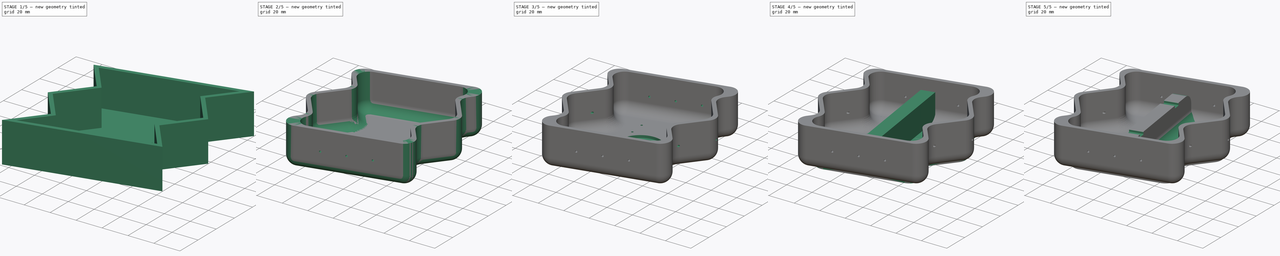
[diagram: build sequence overview — one tinted view per stage of 5, left to right]
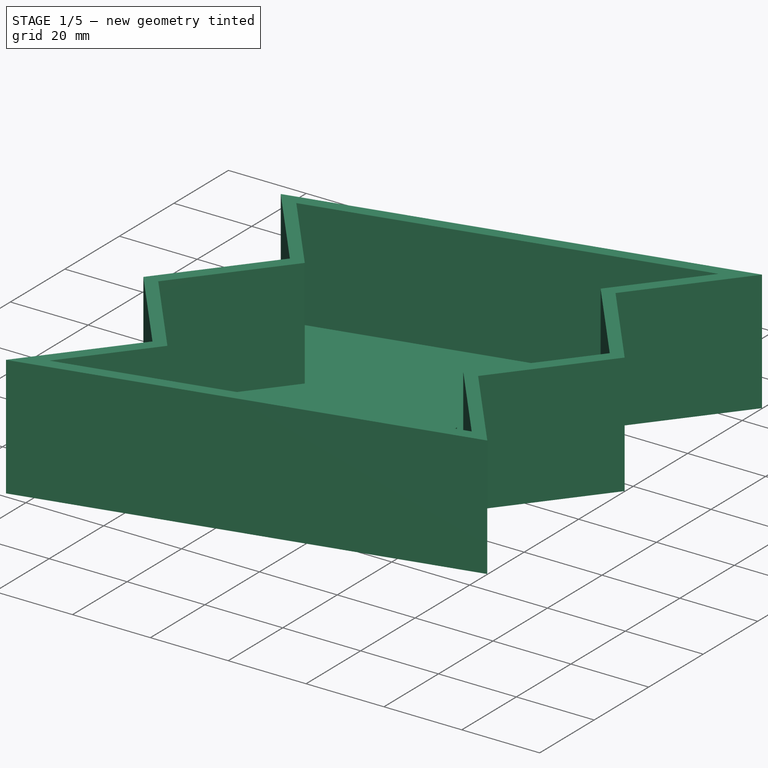
[diagram: stage 1 of 5 — iso view after this stage's code; geometry added in this stage tinted green]
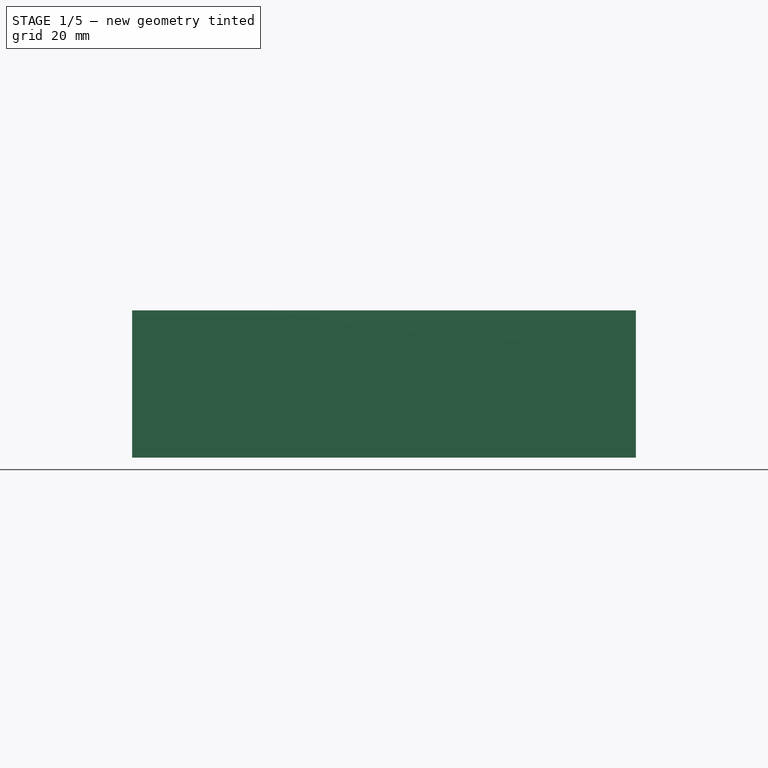
[diagram: stage 1 of 5 — front view after this stage's code; geometry added in this stage tinted green]
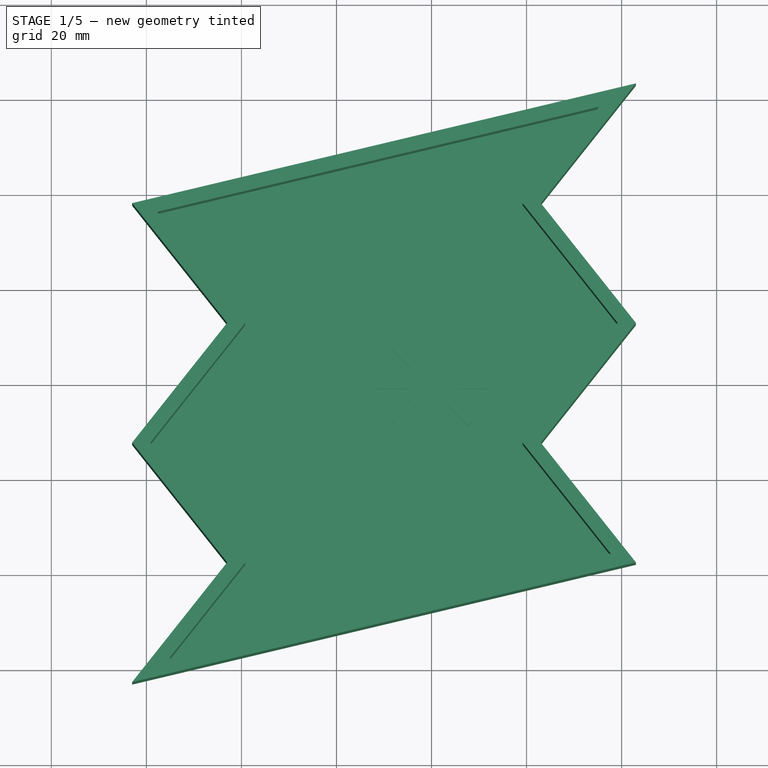
[diagram: stage 1 of 5 — top view after this stage's code; geometry added in this stage tinted green]
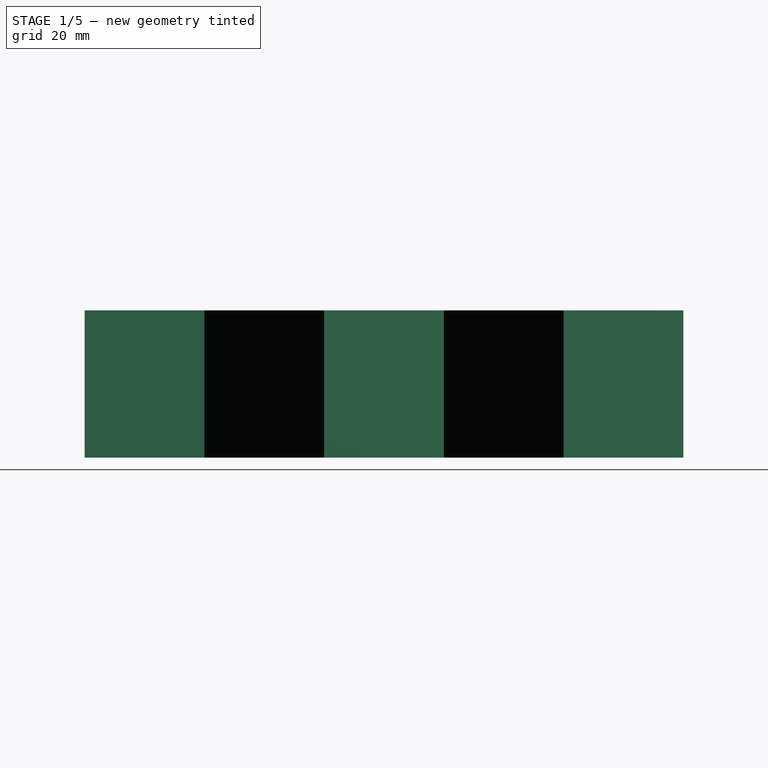
[diagram: stage 1 of 5 — right view after this stage's code; geometry added in this stage tinted green]
FCSTD DOCUMENT  (FreeCAD 0.19R24212 (Git))
Label: zigzag-tempeh-mold
License: All rights reserved
LicenseURL: http://en.wikipedia.org/wiki/All_rights_reserved
objects: Sketcher::SketchObject×14, PartDesign::Pocket×9, PartDesign::Fillet×9, PartDesign::Pad×5, PartDesign::Body×4, PartDesign::Plane×2, PartDesign::FeatureBase×2, Spreadsheet::Sheet×1, PartDesign::Line×1, PartDesign::Mirrored×1, Part::Feature×1
note: 71 computed .brp shape members not serialized (recipe doc carries the construction recipe); baked Part::Feature solids carry a one-line shape summary decoded from their .brp

FEATURE [Spreadsheet::Sheet] Spreadsheet  label="d"
  cells = A1=thickness; B1(thickness)==3mm; A2=width; B2(width)==80mm; A3=height; B3(height)==28mm; A4=length; B4(length)==120mm; A5=filet; B5(filet)==8mm; A6=filet_sm; B6(filet_sm)==0.5mm; A7=handle_width; B7(handle_width)==10mm; A8=handle_height; B8(handle_height)==20mm; A9=slot_width; B9(slot_width)==5mm; A10=slot_height; B10(slot_height)==2mm; A11=holes_spacing; B11(holes_spacing)==20mm; A12=holes_dia; B12(holes_dia)==1.5mm; A13=inner_margin; B13(inner_margin)==2mm; A14=lid_holes_number; B14(lid_holes_number)=4; A15=lid_holes_spacing; B15(lid_holes_spacing)==(length - inner_margin) / (lid_holes_number + 1); A16=face_length_holes_number; B16(face_length_holes_number)=4; A17=face_length_holes_spacing; B17(face_length_holes_spacing)==(length + thickness * 2 - filet * 2) / (face_length_holes_number + 1); A18=face_width_holes_number; B18(face_width_holes_number)=3; A19=face_width_holes_spacing; B19(face_width_holes_spacing)==(width + thickness * 2 - filet * 2) / (face_width_holes_number + 1); A20=back_holes_number; B20(back_holes_number)=6; A21=back_holes_spacing; B21(back_holes_spacing)==(length + thickness * 2 - filet * 2) / (back_holes_number + 1); A23=outerwidth; B23(outerwidth)==width + thickness * 2; A24=outerlength; B24(outerlength)==length + thickness * 2; A25=outerheight; B25(outerheight)==height + thickness; A27=volume; B27==width * height * length; A29=zigzag_spacing; B29(zigzag_spacing)==20mm; A30=zigzag_curve; B30(zigzag_curve)==8mm; A32=coin_dia; B32(coin_dia)==30mm; A33=coin_margin; B33(coin_margin)==1mm; A34=coin_height; B34(coin_height)==thickness - 1mm; A35=coin_outer_dia; B35(coin_outer_dia)==coin_dia + coin_margin
FEATURE [Sketcher::SketchObject] Sketch
  FullyConstrained = true
  MapMode = 5
  Support = -> [XY_Plane]
  expr: Constraints[8] = <<d>>.outerwidth
  expr: Constraints[48] = <<d>>.outerlength / 5
  expr: Constraints[9] = <<d>>.outerlength
  expr: Constraints[28] = <<d>>.zigzag_spacing
  expr: Constraints[45] = <<d>>.outerlength / 5
  expr: Constraints[46] = <<d>>.outerlength / 5
  expr: Constraints[47] = <<d>>.outerlength / 5
  sketch-geometry (31):
    g0: LineSegment StartX=-43 StartY=63 StartZ=0 EndX=43 EndY=63 EndZ=0
    g1: LineSegment StartX=43 StartY=63 StartZ=0 EndX=43 EndY=-63 EndZ=0
    g2: LineSegment StartX=43 StartY=-63 StartZ=0 EndX=-43 EndY=-63 EndZ=0
    g3: LineSegment StartX=-43 StartY=-63 StartZ=0 EndX=-43 EndY=63 EndZ=0
    g4: LineSegment StartX=-43 StartY=63 StartZ=0 EndX=-63 EndY=63 EndZ=0
    g5: LineSegment StartX=-63 StartY=63 StartZ=0 EndX=-63 EndY=-63 EndZ=0
    g6: LineSegment StartX=-63 StartY=-63 StartZ=0 EndX=-43 EndY=-63 EndZ=0
    g7: LineSegment StartX=-43 StartY=-63 StartZ=0 EndX=-43 EndY=63 EndZ=0
    g8: LineSegment StartX=43 StartY=63 StartZ=0 EndX=23 EndY=63 EndZ=0
    g9: LineSegment StartX=23 StartY=63 StartZ=0 EndX=23 EndY=-63 EndZ=0
    g10: LineSegment StartX=23 StartY=-63 StartZ=0 EndX=43 EndY=-63 EndZ=0
    g11: LineSegment StartX=43 StartY=-63 StartZ=0 EndX=43 EndY=63 EndZ=0
    g12: LineSegment StartX=-63 StartY=37.8 StartZ=0 EndX=43 EndY=37.8 EndZ=0
    g13: LineSegment StartX=-63 StartY=12.6 StartZ=0 EndX=43 EndY=12.6 EndZ=0
    g14: LineSegment StartX=-63 StartY=-12.6 StartZ=0 EndX=43 EndY=-12.6 EndZ=0
    g15: LineSegment StartX=-63 StartY=-37.8 StartZ=0 EndX=43 EndY=-37.8 EndZ=0
    g16: LineSegment StartX=-63 StartY=37.8 StartZ=0 EndX=-63 EndY=63 EndZ=0
    g17: LineSegment StartX=43 StartY=63 StartZ=0 EndX=-63 EndY=37.8 EndZ=0
    g18: GeomPoint X=-43 Y=12.6 Z=0
    g19: GeomPoint X=-43 Y=-37.8 Z=0
    g20: GeomPoint X=23 Y=37.8 Z=0
    g21: GeomPoint X=23 Y=-12.6 Z=0
    g22: LineSegment StartX=-63 StartY=37.8 StartZ=0 EndX=-43 EndY=12.6 EndZ=0
    g23: LineSegment StartX=-43 StartY=12.6 StartZ=0 EndX=-63 EndY=-12.6 EndZ=0
    g24: LineSegment StartX=-63 StartY=-12.6 StartZ=0 EndX=-43 EndY=-37.8 EndZ=0
    g25: LineSegment StartX=-43 StartY=-37.8 StartZ=0 EndX=-63 EndY=-63 EndZ=0
    g26: LineSegment StartX=-63 StartY=-63 StartZ=0 EndX=43 EndY=-37.8 EndZ=0
    g27: LineSegment StartX=43 StartY=-37.8 StartZ=0 EndX=23 EndY=-12.6 EndZ=0
    g28: LineSegment StartX=23 StartY=-12.6 StartZ=0 EndX=43 EndY=12.6 EndZ=0
    g29: LineSegment StartX=43 StartY=12.6 StartZ=0 EndX=23 EndY=37.8 EndZ=0
    g30: LineSegment StartX=23 StartY=37.8 StartZ=0 EndX=43 EndY=63 EndZ=0
  constraints (77):
    c: Coincident(g0,g1)
    c: Coincident(g1,g2)
    c: Coincident(g2,g3)
    c: Coincident(g3,g0)
    c: Horizontal(g2)
    c: Vertical(g1)
    c: Symmetric(g0,g0,g-2)
    c: Symmetric(g0,g2,g-1)
    c: DistanceX(g0,g0) = 86
    c: DistanceY(g3,g3) = 126
    c: Coincident(g4,g5)
    c: Coincident(g5,g6)
    c: Coincident(g6,g7)
    c: Coincident(g7,g4)
    c: Horizontal(g4)
    c: Horizontal(g6)
    c: Vertical(g5)
    c: Coincident(g4,g0)
    c: Coincident(g2,g6)
    c: Coincident(g8,g9)
    c: Coincident(g9,g10)
    c: Coincident(g10,g11)
    c: Coincident(g11,g8)
    c: Horizontal(g8)
    c: Horizontal(g10)
    c: Vertical(g9)
    c: Vertical(g11)
    c: Coincident(g8,g0)
    c: DistanceX(g6,g6) = 20
    c: Equal(g10,g6)
    c: PointOnObject(g9,g2)
    c: PointOnObject(g12,g5)
    c: PointOnObject(g12,g1)
    c: Horizontal(g12)
    c: PointOnObject(g13,g5)
    c: PointOnObject(g13,g1)
    c: Horizontal(g13)
    c: PointOnObject(g14,g5)
    c: PointOnObject(g14,g1)
    c: Horizontal(g14)
    c: PointOnObject(g15,g5)
    c: PointOnObject(g15,g1)
    c: Horizontal(g15)
    c: Coincident(g16,g12)
    c: Coincident(g16,g4)
    c: DistanceY(g12,g4) = 25.2
    c: DistanceY(g13,g12) = 25.2
    c: DistanceY(g14,g13) = 25.2
    c: DistanceY(g15,g14) = 25.2
    c: Coincident(g17,g12)
    c: PointOnObject(g18,g3)
    c: PointOnObject(g19,g3)
    c: PointOnObject(g20,g9)
    c: PointOnObject(g21,g9)
    c: PointOnObject(g20,g12)
    c: PointOnObject(g21,g14)
    c: PointOnObject(g18,g13)
    c: PointOnObject(g19,g15)
    c: Coincident(g17,g22)
    c: Coincident(g22,g18)
    c: Coincident(g22,g23)
    c: Coincident(g23,g14)
    c: Coincident(g23,g24)
    c: Coincident(g24,g19)
    c: Coincident(g24,g25)
    c: Coincident(g25,g5)
    c: Coincident(g26,g15)
    c: Coincident(g26,g27)
    c: Coincident(g27,g21)
    c: Coincident(g27,g28)
    c: Coincident(g28,g13)
    c: Coincident(g28,g29)
    c: Coincident(g29,g20)
    c: Coincident(g29,g30)
    c: Coincident(g30,g0)
    c: Coincident(g17,g30)
    c: Coincident(g26,g25)
FEATURE [PartDesign::Pad] Pad
  Direction = (1,1,1)
  Length = 31
  Length2 = 100
  Profile = -> Sketch
  Type = 0
  expr: Length = <<d>>.outerheight
FEATURE [Sketcher::SketchObject] Sketch001
  FullyConstrained = true
  MapMode = 5
  Placement = pos=(0,0,31) rot=(0,0,1;0rad)
  Support = -> [Pad]
  expr: Constraints[8] = Sketch.Constraints[8]
  expr: Constraints[48] = Sketch.Constraints[48]
  expr: Constraints[9] = Sketch.Constraints[9]
  expr: Constraints[28] = Sketch.Constraints[28]
  expr: Constraints[45] = Sketch.Constraints[45]
  expr: Constraints[46] = Sketch.Constraints[46]
  expr: Constraints[47] = Sketch.Constraints[47]
  expr: Constraints[78] = <<d>>.thickness
  sketch-geometry (78):
    g0: LineSegment StartX=-43 StartY=63 StartZ=0 EndX=43 EndY=63 EndZ=0
    g1: LineSegment StartX=43 StartY=63 StartZ=0 EndX=43 EndY=-63 EndZ=0
    g2: LineSegment StartX=43 StartY=-63 StartZ=0 EndX=-43 EndY=-63 EndZ=0
    g3: LineSegment StartX=-43 StartY=-63 StartZ=0 EndX=-43 EndY=63 EndZ=0
    g4: LineSegment StartX=-43 StartY=63 StartZ=0 EndX=-63 EndY=63 EndZ=0
    g5: LineSegment StartX=-63 StartY=63 StartZ=0 EndX=-63 EndY=-63 EndZ=0
    g6: LineSegment StartX=-63 StartY=-63 StartZ=0 EndX=-43 EndY=-63 EndZ=0
    g7: LineSegment StartX=-43 StartY=-63 StartZ=0 EndX=-43 EndY=63 EndZ=0
    g8: LineSegment StartX=43 StartY=63 StartZ=0 EndX=23 EndY=63 EndZ=0
    g9: LineSegment StartX=23 StartY=63 StartZ=0 EndX=23 EndY=-63 EndZ=0
    g10: LineSegment StartX=23 StartY=-63 StartZ=0 EndX=43 EndY=-63 EndZ=0
    g11: LineSegment StartX=43 StartY=-63 StartZ=0 EndX=43 EndY=63 EndZ=0
    g12: LineSegment StartX=-63 StartY=37.8 StartZ=0 EndX=43 EndY=37.8 EndZ=0
    g13: LineSegment StartX=-63 StartY=12.6 StartZ=0 EndX=43 EndY=12.6 EndZ=0
    g14: LineSegment StartX=-63 StartY=-12.6 StartZ=0 EndX=43 EndY=-12.6 EndZ=0
    g15: LineSegment StartX=-63 StartY=-37.8 StartZ=0 EndX=43 EndY=-37.8 EndZ=0
    g16: LineSegment StartX=-63 StartY=37.8 StartZ=0 EndX=-63 EndY=63 EndZ=0
    g17: LineSegment StartX=43 StartY=63 StartZ=0 EndX=-63 EndY=37.8 EndZ=0
    g18: GeomPoint X=-43 Y=12.6 Z=0
    g19: GeomPoint X=-43 Y=-37.8 Z=0
    g20: GeomPoint X=23 Y=37.8 Z=0
    g21: GeomPoint X=23 Y=-12.6 Z=0
    g22: LineSegment StartX=-63 StartY=37.8 StartZ=0 EndX=-43 EndY=12.6 EndZ=0
    g23: LineSegment StartX=-43 StartY=12.6 StartZ=0 EndX=-63 EndY=-12.6 EndZ=0
    g24: LineSegment StartX=-63 StartY=-12.6 StartZ=0 EndX=-43 EndY=-37.8 EndZ=0
    g25: LineSegment StartX=-43 StartY=-37.8 StartZ=0 EndX=-63 EndY=-63 EndZ=0
    g26: LineSegment StartX=-63 StartY=-63 StartZ=0 EndX=43 EndY=-37.8 EndZ=0
    g27: LineSegment StartX=43 StartY=-37.8 StartZ=0 EndX=23 EndY=-12.6 EndZ=0
    g28: LineSegment StartX=23 StartY=-12.6 StartZ=0 EndX=43 EndY=12.6 EndZ=0
    g29: LineSegment StartX=43 StartY=12.6 StartZ=0 EndX=23 EndY=37.8 EndZ=0
    g30: LineSegment StartX=23 StartY=37.8 StartZ=0 EndX=43 EndY=63 EndZ=0
    g31: LineSegment StartX=-57.7191 StartY=35.9719 StartZ=0 EndX=-58.413 EndY=38.8905 EndZ=0
    g32: LineSegment StartX=-57.7191 StartY=35.9719 StartZ=0 EndX=-60.069 EndY=34.1069 EndZ=0
    g33: LineSegment StartX=35.2628 StartY=58.077 StartZ=0 EndX=34.569 EndY=60.9956 EndZ=0
    g34: LineSegment StartX=35.2628 StartY=58.077 StartZ=0 EndX=37.6127 EndY=56.212 EndZ=0
    g35: LineSegment StartX=23 StartY=37.8 StartZ=0 EndX=20.6501 EndY=39.665 EndZ=0
    g36: LineSegment StartX=23 StartY=37.8 StartZ=0 EndX=20.6501 EndY=35.935 EndZ=0
    g37: LineSegment StartX=23 StartY=37.8 StartZ=0 EndX=20 EndY=37.8 EndZ=0
    g38: LineSegment StartX=41.5199 StartY=14.465 StartZ=0 EndX=39.17 EndY=12.6 EndZ=0
    g39: LineSegment StartX=39.17 StartY=12.6 StartZ=0 EndX=41.5199 EndY=10.735 EndZ=0
    g40: LineSegment StartX=-43 StartY=12.6 StartZ=0 EndX=-40.6501 EndY=14.465 EndZ=0
    g41: LineSegment StartX=-43 StartY=12.6 StartZ=0 EndX=-40.6501 EndY=10.735 EndZ=0
    g42: LineSegment StartX=-61.5199 StartY=-10.735 StartZ=0 EndX=-59.17 EndY=-12.6 EndZ=0
    g43: LineSegment StartX=-59.17 StartY=-12.6 StartZ=0 EndX=-61.5199 EndY=-14.465 EndZ=0
    g44: LineSegment StartX=-43 StartY=-37.8 StartZ=0 EndX=-40.6501 EndY=-35.935 EndZ=0
    g45: LineSegment StartX=-43 StartY=-37.8 StartZ=0 EndX=-40.6501 EndY=-39.665 EndZ=0
    g46: LineSegment StartX=-43 StartY=-37.8 StartZ=0 EndX=-40 EndY=-37.8 EndZ=0
    g47: LineSegment StartX=-57.6127 StartY=-56.212 StartZ=0 EndX=-55.2628 EndY=-58.077 EndZ=0
    g48: LineSegment StartX=-55.2628 StartY=-58.077 StartZ=0 EndX=-54.569 EndY=-60.9956 EndZ=0
    g49: LineSegment StartX=23 StartY=-12.6 StartZ=0 EndX=20.6501 EndY=-10.735 EndZ=0
    g50: LineSegment StartX=23 StartY=-12.6 StartZ=0 EndX=20.6501 EndY=-14.465 EndZ=0
    g51: LineSegment StartX=23 StartY=-12.6 StartZ=0 EndX=20 EndY=-12.6 EndZ=0
    g52: LineSegment StartX=40.069 StartY=-34.1069 StartZ=0 EndX=37.7191 EndY=-35.9719 EndZ=0
    g53: LineSegment StartX=37.7191 StartY=-35.9719 StartZ=0 EndX=38.413 EndY=-38.8905 EndZ=0
    g54: LineSegment StartX=-57.7191 StartY=35.9719 StartZ=0 EndX=35.2628 EndY=58.077 EndZ=0
    g55: LineSegment StartX=35.2628 StartY=58.077 StartZ=0 EndX=20.6501 EndY=39.665 EndZ=0
    g56: LineSegment StartX=20.6501 StartY=39.665 StartZ=0 EndX=20 EndY=37.8 EndZ=0
    g57: LineSegment StartX=20 StartY=37.8 StartZ=0 EndX=20.6501 EndY=35.935 EndZ=0
    g58: LineSegment StartX=20.6501 StartY=35.935 StartZ=0 EndX=39.17 EndY=12.6 EndZ=0
    g59: LineSegment StartX=39.17 StartY=12.6 StartZ=0 EndX=20.6501 EndY=-10.735 EndZ=0
    g60: LineSegment StartX=20.6501 StartY=-10.735 StartZ=0 EndX=20 EndY=-12.6 EndZ=0
    g61: LineSegment StartX=20 StartY=-12.6 StartZ=0 EndX=20.6501 EndY=-14.465 EndZ=0
    g62: LineSegment StartX=20.6501 StartY=-14.465 StartZ=0 EndX=37.7191 EndY=-35.9719 EndZ=0
    g63: LineSegment StartX=37.7191 StartY=-35.9719 StartZ=0 EndX=-55.2628 EndY=-58.077 EndZ=0
    g64: LineSegment StartX=-55.2628 StartY=-58.077 StartZ=0 EndX=-40.6501 EndY=-39.665 EndZ=0
    g65: LineSegment StartX=-40.6501 StartY=-39.665 StartZ=0 EndX=-40 EndY=-37.8 EndZ=0
    g66: LineSegment StartX=-40 StartY=-37.8 StartZ=0 EndX=-40.6501 EndY=-35.935 EndZ=0
    g67: LineSegment StartX=-40.6501 StartY=-35.935 StartZ=0 EndX=-59.17 EndY=-12.6 EndZ=0
    g68: LineSegment StartX=-59.17 StartY=-12.6 StartZ=0 EndX=-40.6501 EndY=10.735 EndZ=0
    g69: LineSegment StartX=-40.6501 StartY=14.465 StartZ=0 EndX=-57.7191 EndY=35.9719 EndZ=0
    g70: LineSegment StartX=-40.6501 StartY=10.735 StartZ=0 EndX=-39.17 EndY=12.6 EndZ=0
    g71: LineSegment StartX=-39.17 StartY=12.6 StartZ=0 EndX=-40.6501 EndY=14.465 EndZ=0
    g72: LineSegment StartX=-40.6501 StartY=-39.665 StartZ=0 EndX=-39.17 EndY=-37.8 EndZ=0
    g73: LineSegment StartX=-39.17 StartY=-37.8 StartZ=0 EndX=-40.6501 EndY=-35.935 EndZ=0
    g74: LineSegment StartX=20.6501 StartY=-10.735 StartZ=0 EndX=19.17 EndY=-12.6 EndZ=0
    g75: LineSegment StartX=19.17 StartY=-12.6 StartZ=0 EndX=20.6501 EndY=-14.465 EndZ=0
    g76: LineSegment StartX=20.6501 StartY=39.665 StartZ=0 EndX=19.17 EndY=37.8 EndZ=0
    g77: LineSegment StartX=19.17 StartY=37.8 StartZ=0 EndX=20.6501 EndY=35.935 EndZ=0
  constraints (204):
    c: Coincident(g0,g1)
    c: Coincident(g1,g2)
    c: Coincident(g2,g3)
    c: Coincident(g3,g0)
    c: Horizontal(g2)
    c: Vertical(g1)
    c: Symmetric(g0,g0,g-2)
    c: Symmetric(g0,g2,g-1)
    c: DistanceX(g0,g0) = 86
    c: DistanceY(g3,g3) = 126
    c: Coincident(g4,g5)
    c: Coincident(g5,g6)
    c: Coincident(g6,g7)
    c: Coincident(g7,g4)
    c: Horizontal(g4)
    c: Horizontal(g6)
    c: Vertical(g5)
    c: Coincident(g4,g0)
    c: Coincident(g2,g6)
    c: Coincident(g8,g9)
    c: Coincident(g9,g10)
    c: Coincident(g10,g11)
    c: Coincident(g11,g8)
    c: Horizontal(g8)
    c: Horizontal(g10)
    c: Vertical(g9)
    c: Vertical(g11)
    c: Coincident(g8,g0)
    c: DistanceX(g6,g6) = 20
    c: Equal(g10,g6)
    c: PointOnObject(g9,g2)
    c: PointOnObject(g12,g5)
    c: PointOnObject(g12,g1)
    c: Horizontal(g12)
    c: PointOnObject(g13,g5)
    c: PointOnObject(g13,g1)
    c: Horizontal(g13)
    c: PointOnObject(g14,g5)
    c: PointOnObject(g14,g1)
    c: Horizontal(g14)
    c: PointOnObject(g15,g5)
    c: PointOnObject(g15,g1)
    c: Horizontal(g15)
    c: Coincident(g16,g12)
    c: Coincident(g16,g4)
    c: DistanceY(g12,g4) = 25.2
    c: DistanceY(g13,g12) = 25.2
    c: DistanceY(g14,g13) = 25.2
    c: DistanceY(g15,g14) = 25.2
    c: Coincident(g17,g12)
    c: PointOnObject(g18,g3)
    c: PointOnObject(g19,g3)
    c: PointOnObject(g20,g9)
    c: PointOnObject(g21,g9)
    c: PointOnObject(g20,g12)
    c: PointOnObject(g21,g14)
    c: PointOnObject(g18,g13)
    c: PointOnObject(g19,g15)
    c: Coincident(g17,g22)
    c: Coincident(g22,g18)
    c: Coincident(g22,g23)
    c: Coincident(g23,g14)
    c: Coincident(g23,g24)
    c: Coincident(g24,g19)
    c: Coincident(g24,g25)
    c: Coincident(g25,g5)
    c: Coincident(g26,g15)
    c: Coincident(g26,g27)
    c: Coincident(g27,g21)
    c: Coincident(g27,g28)
    c: Coincident(g28,g13)
    c: Coincident(g28,g29)
    c: Coincident(g29,g20)
    c: Coincident(g29,g30)
    c: Coincident(g30,g0)
    c: Coincident(g17,g30)
    c: Coincident(g26,g25)
    c: PointOnObject(g31,g17)
    c: Distance(g31) = 3
    c: Perpendicular(g17,g31)
    c: PointOnObject(g32,g22)
    c: Equal(g32,g31)
    c: Perpendicular(g22,g32)
    c: PointOnObject(g33,g17)
    c: PointOnObject(g34,g30)
    c: Equal(g34,g33)
    c: Equal(g33,g31)
    c: Perpendicular(g30,g34)
    c: Perpendicular(g17,g33)
    c: Coincident(g35,g29)
    c: Coincident(g36,g29)
    c: Equal(g36,g35)
    c: Equal(g35,g31)
    c: Perpendicular(g30,g35)
    c: Perpendicular(g29,g36)
    c: Coincident(g37,g29)
    c: Equal(g37,g35)
    c: PointOnObject(g37,g12)
    c: PointOnObject(g38,g29)
    c: Coincident(g39,g38)
    c: PointOnObject(g39,g28)
    c: Equal(g38,g39)
    c: Equal(g39,g31)
    c: Perpendicular(g29,g38)
    c: Perpendicular(g28,g39)
    c: Coincident(g40,g23)
    c: Coincident(g41,g23)
    c: Perpendicular(g22,g40)
    c: Perpendicular(g23,g41)
    c: Equal(g40,g31)
    c: PointOnObject(g42,g23)
    c: Coincident(g43,g42)
    c: PointOnObject(g43,g24)
    c: Equal(g43,g42)
    c: Equal(g42,g31)
    c: Perpendicular(g23,g42)
    c: Perpendicular(g24,g43)
    c: Coincident(g44,g24)
    c: Coincident(g45,g24)
    c: Coincident(g46,g24)
    c: Perpendicular(g24,g44)
    c: Perpendicular(g25,g45)
    c: Equal(g46,g44)
    c: Equal(g44,g45)
    c: Equal(g45,g31)
    c: PointOnObject(g46,g15)
    c: PointOnObject(g47,g25)
    c: Coincident(g48,g47)
    c: PointOnObject(g48,g26)
    c: Perpendicular(g25,g47)
    c: Perpendicular(g26,g48)
    c: Equal(g48,g47)
    c: Equal(g47,g31)
    c: Coincident(g32,g31)
    c: Coincident(g34,g33)
    c: Coincident(g49,g27)
    c: Coincident(g50,g27)
    c: Coincident(g51,g27)
    c: Perpendicular(g28,g49)
    c: Perpendicular(g27,g50)
    c: Equal(g31,g49)
    c: Equal(g49,g51)
    c: Equal(g51,g50)
    c: PointOnObject(g51,g14)
    c: PointOnObject(g52,g27)
    c: Coincident(g53,g52)
    c: PointOnObject(g53,g26)
    c: Perpendicular(g26,g53)
    c: Perpendicular(g27,g52)
    c: Equal(g52,g53)
    c: Equal(g53,g31)
    c: Coincident(g54,g31)
    c: Coincident(g54,g33)
    c: Coincident(g54,g55)
    c: Coincident(g55,g35)
    c: Coincident(g55,g56)
    c: Coincident(g56,g37)
    c: Coincident(g56,g57)
    c: Coincident(g57,g36)
    c: Coincident(g57,g58)
    c: Coincident(g58,g38)
    c: Coincident(g58,g59)
    c: Coincident(g59,g49)
    c: Coincident(g59,g60)
    c: Coincident(g60,g51)
    c: Coincident(g60,g61)
    c: Coincident(g61,g50)
    c: Coincident(g61,g62)
    c: Coincident(g62,g52)
    c: Coincident(g62,g63)
    c: Coincident(g63,g47)
    c: Coincident(g63,g64)
    c: Coincident(g64,g45)
    c: Coincident(g64,g65)
    c: Coincident(g65,g46)
    c: Coincident(g65,g66)
    c: Coincident(g66,g44)
    c: Coincident(g66,g67)
    c: Coincident(g67,g42)
    c: Coincident(g67,g68)
    c: Coincident(g68,g41)
    c: Coincident(g69,g54)
    c: Coincident(g70,g68)
    c: PointOnObject(g70,g13)
    c: Parallel(g70,g68)
    c: Coincident(g71,g70)
    c: Coincident(g71,g69)
    c: Parallel(g71,g69)
    c: Coincident(g40,g69)
    c: Coincident(g72,g64)
    c: PointOnObject(g72,g15)
    c: Coincident(g73,g72)
    c: Coincident(g73,g67)
    c: Parallel(g67,g73)
    c: Coincident(g74,g59)
    c: PointOnObject(g74,g14)
    c: Coincident(g75,g74)
    c: Coincident(g75,g62)
    c: Parallel(g74,g59)
    c: Coincident(g76,g55)
    c: PointOnObject(g76,g12)
    c: Coincident(g77,g76)
    c: Coincident(g77,g58)
    c: Parallel(g76,g55)
FEATURE [PartDesign::Pocket] Pocket
  BaseFeature = -> Pad
  Length = 28
  Length2 = 100
  Profile = -> Sketch001
  Type = 0
  expr: Length = <<d>>.height
FEATURE [Part::Feature] rect207_3_6_7
  Placement = pos=(-24.2599,14.4942,0) rot=(0,0,1;0rad)
  shape: bbox 22.81 x 22.81 x 2e-07 mm, 1 faces, 0 solids (baked)
FEATURE [PartDesign::FeatureBase] BaseFeature
  BaseFeature = -> rect207_3_6_7
  Placement = pos=(-14.187,14.2875,0) rot=(0,0,1;0rad)
FEATURE [Sketcher::SketchObject] Sketch013
  FullyConstrained = true
  MapMode = 5
  Support = -> [XY_Plane002]
  expr: Constraints[1] = <<d>>.coin_dia + <<d>>.coin_margin * 3 / 2
  sketch-geometry (1):
    g0: Circle CenterX=0 CenterY=0 CenterZ=0 NormalX=0 NormalY=0 NormalZ=1 AngleXU=0 Radius=15.75
  constraints (2):
    c: Coincident(g0,g-1)
    c: Diameter(g0) = 31.5
FEATURE [PartDesign::Pad] Pad003
  BaseFeature = -> BaseFeature
  Direction = (1,1,1)
  Length = 2
  Length2 = 100
  Placement = pos=(-14.187,14.2875,0) rot=(0,0,1;0rad)
  Profile = -> Sketch013
  Type = 0
  expr: Length = <<d>>.coin_height
FEATURE [PartDesign::Pad] Pad004
  BaseFeature = -> Pad003
  Direction = (1,1,1)
  Length = 4
  Length2 = 1
  Placement = pos=(-14.187,14.2875,0) rot=(0,0,1;0rad)
  Profile = -> BaseFeature
  Type = 0
  expr: Length = <<d>>.coin_height + <<d>>.coin_margin * 2
FEATURE [PartDesign::Body] Body  label="box"
  Group = -> [Sketch,Pad,Sketch001,Pocket,Fillet,Fillet001,Fillet002,Fillet003,Sketch007,Pocket003,Sketch008,Pocket004,Sketch009,Pocket005,CopyDatumPlane,Sketch010,Pocket006,Sketch011,Pocket007,Sketch012,Pocket008,Fillet008]
  Origin = -> Origin
  Tip = -> Fillet008
FEATURE [PartDesign::FeatureBase] Clone
  BaseFeature = -> Pad004
  Placement = pos=(-14.187,14.2875,0) rot=(0,0,1;0rad)
FEATURE [PartDesign::Body] Body003
  Group = -> [Clone]
  Origin = -> Origin003
  Tip = -> Clone
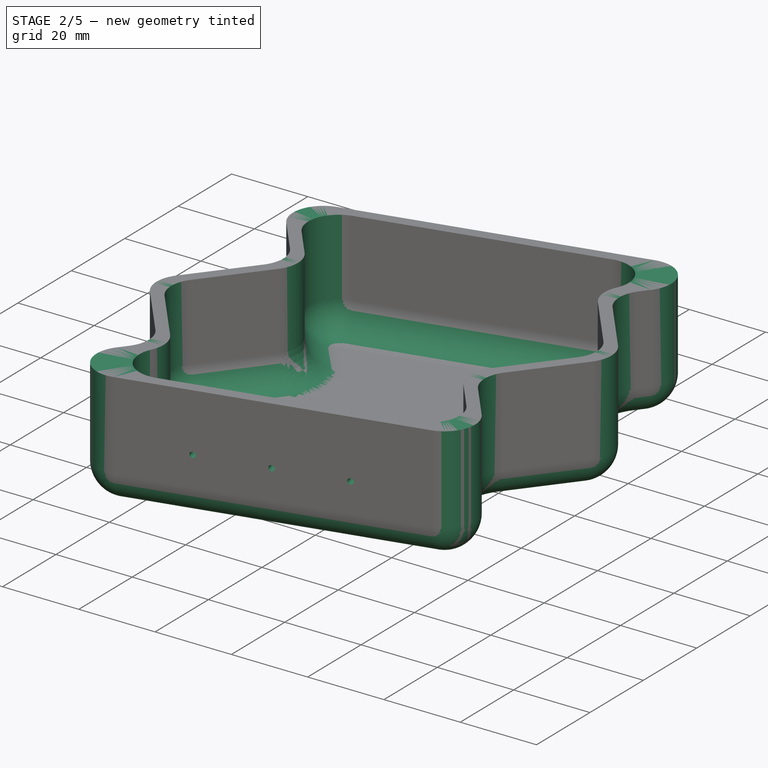
[diagram: stage 2 of 5 — iso view after this stage's code; geometry added in this stage tinted green]
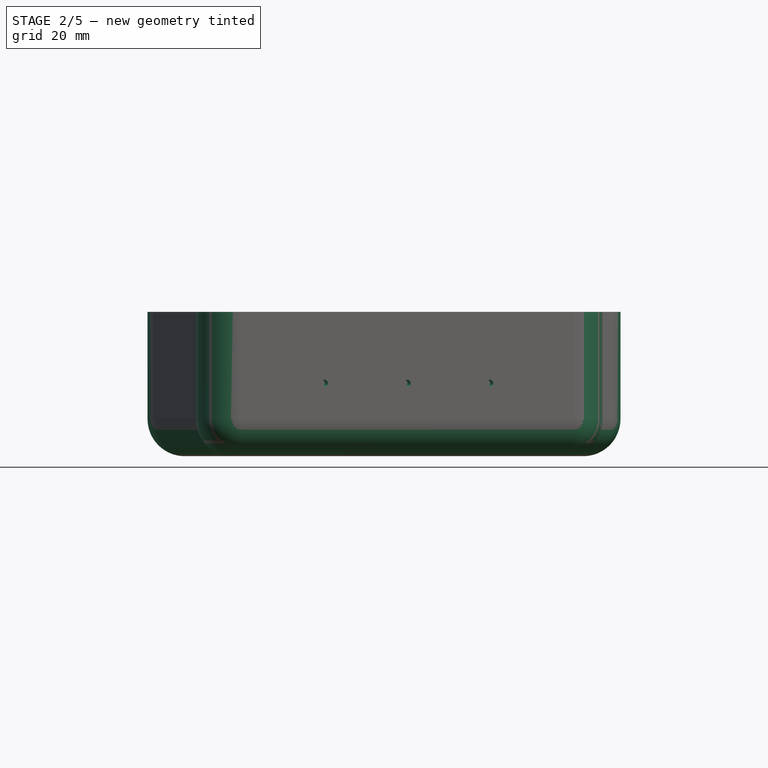
[diagram: stage 2 of 5 — front view after this stage's code; geometry added in this stage tinted green]
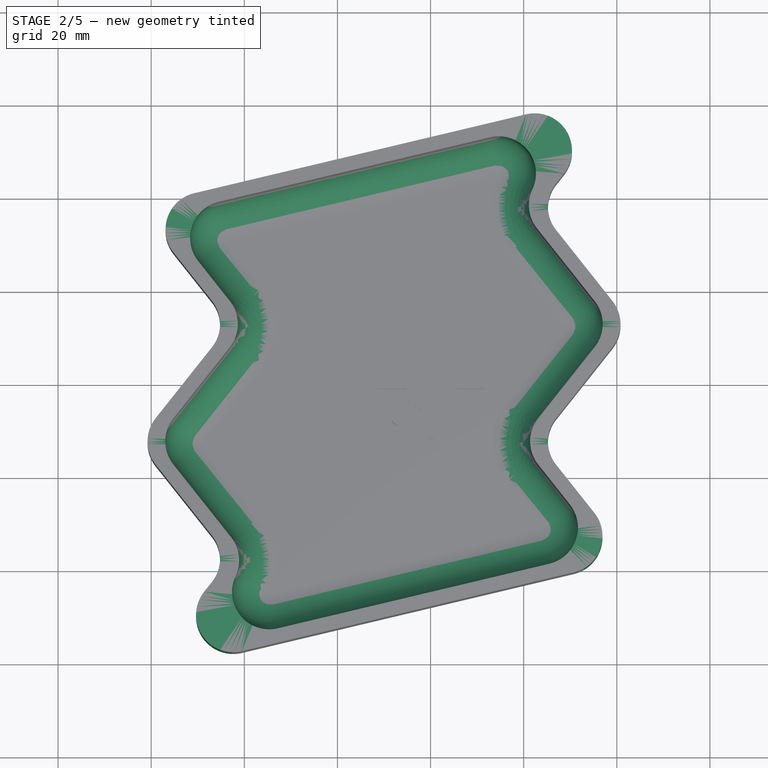
[diagram: stage 2 of 5 — top view after this stage's code; geometry added in this stage tinted green]
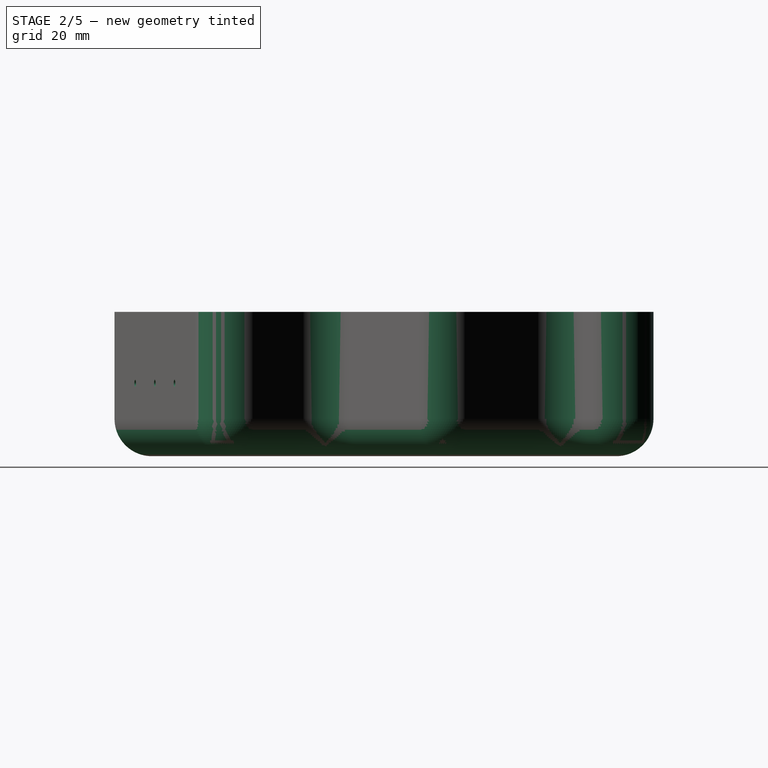
[diagram: stage 2 of 5 — right view after this stage's code; geometry added in this stage tinted green]
FEATURE [PartDesign::Fillet] Fillet
  Base = -> Pocket [Edge64,Edge46,Edge44,Edge56,Edge2,Edge50,Edge1,Edge82,Edge74,Edge43,Edge47,Edge66,Edge8,Edge45,Edge48,Edge5]
  BaseFeature = -> Pocket
  Radius = 8
  SupportTransform = false
  expr: Radius = <<d>>.zigzag_curve
FEATURE [PartDesign::Fillet] Fillet001
  Base = -> Fillet [Edge90,Edge110,Edge104,Edge124]
  BaseFeature = -> Fillet
  Radius = 8
  SupportTransform = false
  expr: Radius = <<d>>.zigzag_curve
FEATURE [PartDesign::Fillet] Fillet002
  Base = -> Fillet001 [Edge49]
  BaseFeature = -> Fillet001
  Radius = 8
  SupportTransform = false
  expr: Radius = <<d>>.filet
FEATURE [PartDesign::Fillet] Fillet003
  Base = -> Fillet002 [Edge131]
  BaseFeature = -> Fillet002
  Radius = 8
  SupportTransform = false
  expr: Radius = <<d>>.filet
FEATURE [PartDesign::Body] Body001  label="lid"
  Group = -> [Sketch002,Pad001,Fillet004,Fillet005,Sketch003,Pad002,Fillet006,Sketch004,Sketch005,Pocket001,Fillet007,Sketch006,Pocket002,DatumLine,DatumPlane,Mirrored]
  Origin = -> Origin001
  Placement = pos=(0,0,64) rot=(0,0,1;0rad)
  Tip = -> Mirrored
FEATURE [Sketcher::SketchObject] Sketch007
  ExternalGeometry = -> [Fillet003]
  FullyConstrained = true
  MapMode = 5
  Placement = pos=(10.806,-45.4537,0) rot=(0.986533,0.115655,0.115655;1.58435rad)
  Support = -> [Fillet003]
  expr: Constraints[4] = 23 / 3 * 2
  expr: Constraints[8] = <<d>>.holes_dia
  expr: Constraints[12] = 73 / (<<d>>.face_width_holes_number + 1)
  expr: Constraints[13] = 73 / (<<d>>.face_width_holes_number + 1)
  expr: Constraints[14] = 73 / (<<d>>.face_width_holes_number + 1)
  sketch-geometry (4):
    g0: LineSegment StartX=-52.7537 StartY=15.6667 StartZ=0 EndX=20.5183 EndY=15.6667 EndZ=0
    g1: Circle CenterX=-34.5037 CenterY=15.6667 CenterZ=0 NormalX=0 NormalY=0 NormalZ=1 AngleXU=0 Radius=0.75
    g2: Circle CenterX=-16.2537 CenterY=15.6667 CenterZ=0 NormalX=0 NormalY=0 NormalZ=1 AngleXU=0 Radius=0.75
    g3: Circle CenterX=1.99635 CenterY=15.6667 CenterZ=0 NormalX=0 NormalY=0 NormalZ=1 AngleXU=0 Radius=0.75
  constraints (15):
    c: PointOnObject(g0,g-4)
    c: PointOnObject(g0,g-5)
    c: Horizontal(g0)
    c: DistanceY(g-4,g-4) = 23
    c: DistanceY(g0,g-4) = 15.3333
    c: PointOnObject(g1,g0)
    c: PointOnObject(g2,g0)
    c: PointOnObject(g3,g0)
    c: Diameter(g1) = 1.5
    c: Equal(g1,g2)
    c: Equal(g2,g3)
    c: DistanceX(g-3,g-3) = 73.2719
    c: DistanceX(g0,g1) = 18.25
    c: DistanceX(g1,g2) = 18.25
    c: DistanceX(g2,g3) = 18.25
FEATURE [PartDesign::Pocket] Pocket003
  BaseFeature = -> Fillet003
  Length = 3
  Length2 = 100
  Profile = -> Sketch007
  Type = 0
  expr: Length = <<d>>.thickness
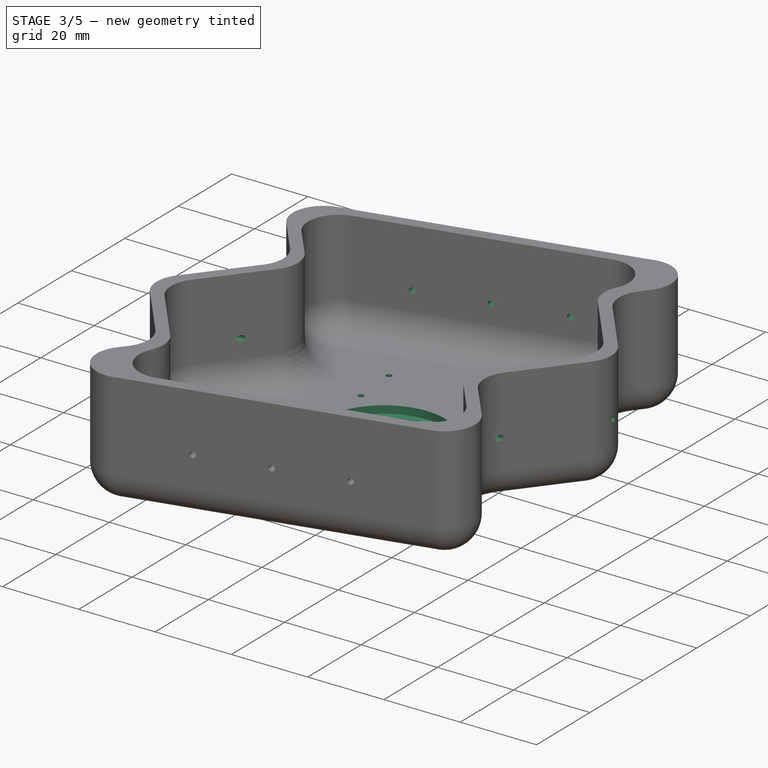
[diagram: stage 3 of 5 — iso view after this stage's code; geometry added in this stage tinted green]
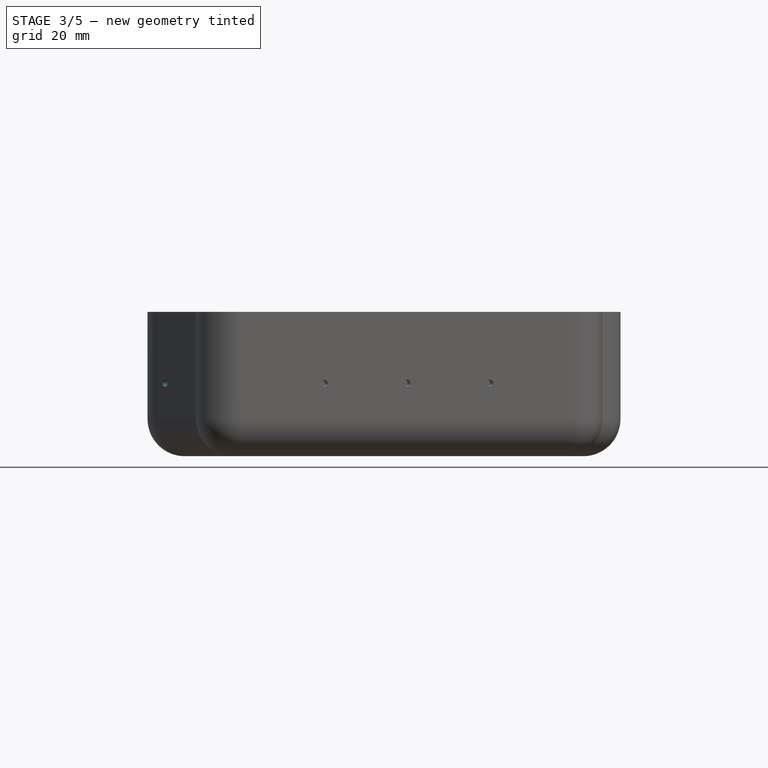
[diagram: stage 3 of 5 — front view after this stage's code; geometry added in this stage tinted green]
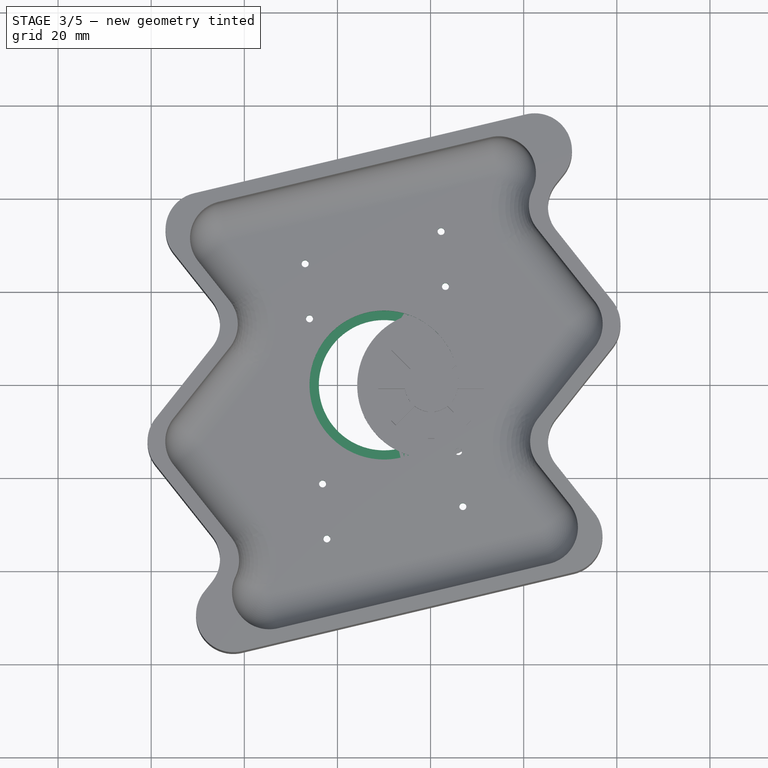
[diagram: stage 3 of 5 — top view after this stage's code; geometry added in this stage tinted green]
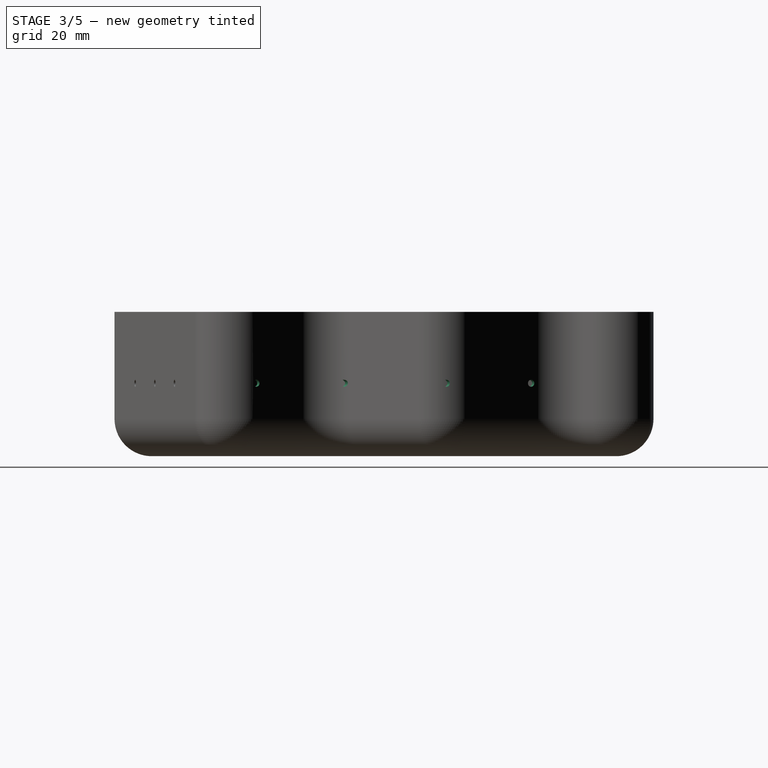
[diagram: stage 3 of 5 — right view after this stage's code; geometry added in this stage tinted green]
FEATURE [Sketcher::SketchObject] Sketch008
  ExternalGeometry = -> [Pocket003]
  FullyConstrained = true
  MapMode = 5
  Placement = pos=(-11.8759,49.954,0) rot=(-0.082614,0.70469,0.70469;3.30645rad)
  Support = -> [Pocket003]
  expr: Constraints[5] = 23 / 3 * 2
  expr: Constraints[9] = <<d>>.holes_dia
  expr: Constraints[14] = 73 / (<<d>>.face_width_holes_number + 1)
  expr: Constraints[12] = 73 / (<<d>>.face_width_holes_number + 1)
  expr: Constraints[13] = 73 / (<<d>>.face_width_holes_number + 1)
  sketch-geometry (4):
    g0: LineSegment StartX=-33.296 StartY=15.6667 StartZ=0 EndX=39.976 EndY=15.6667 EndZ=0
    g1: Circle CenterX=-15.046 CenterY=15.6667 CenterZ=0 NormalX=0 NormalY=0 NormalZ=1 AngleXU=0 Radius=0.75
    g2: Circle CenterX=3.20405 CenterY=15.6667 CenterZ=0 NormalX=0 NormalY=0 NormalZ=1 AngleXU=0 Radius=0.75
    g3: Circle CenterX=21.454 CenterY=15.6667 CenterZ=0 NormalX=0 NormalY=0 NormalZ=1 AngleXU=0 Radius=0.75
  constraints (15):
    c: DistanceY(g-4,g-4) = 23
    c: DistanceX(g-3,g-3) = 73.2719
    c: PointOnObject(g0,g-4)
    c: PointOnObject(g0,g-5)
    c: Horizontal(g0)
    c: DistanceY(g0,g-4) = 15.3333
    c: PointOnObject(g1,g0)
    c: PointOnObject(g2,g0)
    c: PointOnObject(g3,g0)
    c: Diameter(g1) = 1.5
    c: Equal(g3,g2)
    c: Equal(g2,g1)
    c: DistanceX(g0,g1) = 18.25
    c: DistanceX(g1,g2) = 18.25
    c: DistanceX(g2,g3) = 18.25
FEATURE [PartDesign::Pocket] Pocket004
  BaseFeature = -> Pocket003
  Length = 3
  Length2 = 100
  Profile = -> Sketch008
  Type = 0
  expr: Length = <<d>>.thickness
FEATURE [Sketcher::SketchObject] Sketch009
  ExternalGeometry = -> [Pocket004]
  FullyConstrained = true
  MapMode = 5
  Placement = pos=(0,0,0) rot=(1,0,0;3.14159rad)
  Support = -> [Pocket004]
  expr: Constraints[5] = <<d>>.handle_width / 2 * 3
  expr: Constraints[9] = <<d>>.handle_width / 2 * 3
  expr: Constraints[14] = <<d>>.holes_dia
  expr: Constraints[27] = 83 / (<<d>>.back_holes_number + 1)
  expr: Constraints[18] = 83 / (<<d>>.back_holes_number + 1)
  expr: Constraints[19] = 83 / (<<d>>.back_holes_number + 1)
  expr: Constraints[20] = 83 / (<<d>>.back_holes_number + 1)
  expr: Constraints[26] = 83 / (<<d>>.back_holes_number + 1)
  expr: Constraints[32] = 83 / (<<d>>.back_holes_number + 1)
  expr: Constraints[21] = 83 / (<<d>>.back_holes_number + 1)
  expr: Constraints[30] = 83 / (<<d>>.back_holes_number + 1)
  sketch-geometry (21):
    g0: LineSegment StartX=-6.72501 StartY=41.3985 StartZ=0 EndX=-13.275 EndY=-41.3985 EndZ=0
    g1: LineSegment StartX=-21.3183 StartY=44.8678 StartZ=0 EndX=-27.8683 EndY=-37.9291 EndZ=0
    g2: LineSegment StartX=7.86826 StartY=37.9291 StartZ=0 EndX=1.31829 EndY=-44.8678 EndZ=0
    g3: Circle CenterX=-22.2534 CenterY=33.0476 CenterZ=0 NormalX=0 NormalY=0 NormalZ=1 AngleXU=0 Radius=0.75
    g4: Circle CenterX=-23.1885 CenterY=21.2274 CenterZ=0 NormalX=0 NormalY=0 NormalZ=1 AngleXU=0 Radius=0.75
    g5: Circle CenterX=-24.1235 CenterY=9.40716 CenterZ=0 NormalX=0 NormalY=0 NormalZ=1 AngleXU=0 Radius=0.75
    g6: Circle CenterX=-25.0586 CenterY=-2.41306 CenterZ=0 NormalX=0 NormalY=0 NormalZ=1 AngleXU=0 Radius=0.75
    g7: Circle CenterX=-25.9937 CenterY=-14.2333 CenterZ=0 NormalX=0 NormalY=0 NormalZ=1 AngleXU=0 Radius=0.75
    g8: Circle CenterX=-26.9288 CenterY=-26.0535 CenterZ=0 NormalX=0 NormalY=0 NormalZ=1 AngleXU=0 Radius=0.75
    g9: Circle CenterX=6.93318 CenterY=26.1089 CenterZ=0 NormalX=0 NormalY=0 NormalZ=1 AngleXU=0 Radius=0.75
    g10: GeomPoint X=5.99809 Y=14.2887 Z=0
    g11: Circle CenterX=5.99809 CenterY=14.2887 CenterZ=0 NormalX=0 NormalY=0 NormalZ=1 AngleXU=0 Radius=0.75
    g12: LineSegment StartX=6.93318 StartY=26.1089 StartZ=0 EndX=5.99809 EndY=14.2887 EndZ=0
    g13: Circle CenterX=5.06301 CenterY=2.46847 CenterZ=0 NormalX=0 NormalY=0 NormalZ=1 AngleXU=0 Radius=0.75
    g14: LineSegment StartX=5.99809 StartY=14.2887 StartZ=0 EndX=5.06301 EndY=2.46847 EndZ=0
    g15: Circle CenterX=4.12792 CenterY=-9.35175 CenterZ=0 NormalX=0 NormalY=0 NormalZ=1 AngleXU=0 Radius=0.75
    g16: LineSegment StartX=5.06301 StartY=2.46847 StartZ=0 EndX=4.12792 EndY=-9.35175 EndZ=0
    g17: Circle CenterX=3.19284 CenterY=-21.172 CenterZ=0 NormalX=0 NormalY=0 NormalZ=1 AngleXU=0 Radius=0.75
    g18: LineSegment StartX=4.12792 StartY=-9.35175 StartZ=0 EndX=3.19284 EndY=-21.172 EndZ=0
    g19: Circle CenterX=2.25775 CenterY=-32.9922 CenterZ=0 NormalX=0 NormalY=0 NormalZ=1 AngleXU=0 Radius=0.75
    g20: LineSegment StartX=3.19284 StartY=-21.172 StartZ=0 EndX=2.25775 EndY=-32.9922 EndZ=0
  constraints (58):
    c: Symmetric(g-3,g-3,g0)
    c: Symmetric(g-4,g-4,g0)
    c: PointOnObject(g1,g-3)
    c: PointOnObject(g1,g-4)
    c: Parallel(g1,g0)
    c: Distance(g1,g0) = 15
    c: PointOnObject(g2,g-3)
    c: PointOnObject(g2,g-4)
    c: Parallel(g2,g0)
    c: Distance(g2,g0) = 15
    c: PointOnObject(g3,g1)
    c: PointOnObject(g4,g1)
    c: PointOnObject(g5,g1)
    c: PointOnObject(g6,g1)
    c: Diameter(g3) = 1.5
    c: Equal(g3,g4)
    c: Equal(g4,g5)
    c: Equal(g5,g6)
    c: Distance(g1,g3) = 11.8571
    c: Distance(g4,g3) = 11.8571
    c: Distance(g5,g4) = 11.8571
    c: Distance(g6,g5) = 11.8571
    c: PointOnObject(g7,g1)
    c: PointOnObject(g8,g1)
    c: Equal(g3,g7)
    c: Equal(g7,g8)
    c: Distance(g6,g7) = 11.8571
    c: Distance(g8,g7) = 11.8571
    c: PointOnObject(g9,g2)
    c: Equal(g9,g3)
    c: Distance(g2,g9) = 11.8571
    c: PointOnObject(g10,g2)
    c: Distance(g10,g9) = 11.8571
    c: Coincident(g9,g12)
    c: Coincident(g11,g12)
    c: Distance(g12) = 11.8571
    c: Coincident(g11,g14)
    c: Coincident(g13,g14)
    c: Equal(g12,g14)
    c: Parallel(g14,g12)
    c: Coincident(g13,g16)
    c: Coincident(g15,g16)
    c: Equal(g12,g16)
    c: Parallel(g16,g12)
    c: Coincident(g15,g18)
    c: Coincident(g17,g18)
    c: Equal(g12,g18)
    c: Parallel(g18,g12)
    c: Coincident(g17,g20)
    c: Coincident(g19,g20)
    c: Equal(g12,g20)
    c: Parallel(g20,g12)
    c: Equal(g19,g17)
    c: Equal(g17,g15)
    c: Equal(g15,g13)
    c: Equal(g13,g11)
    c: Equal(g11,g9)
    c: PointOnObject(g14,g2)
FEATURE [PartDesign::Pocket] Pocket005
  BaseFeature = -> Pocket004
  Length = 3
  Length2 = 100
  Profile = -> Sketch009
  Type = 0
  expr: Length = <<d>>.thickness
FEATURE [PartDesign::Plane] CopyDatumPlane
  Length = 60.6185
  Placement = pos=(-9.78966,-1.35333,23) rot=(0.06847,-0.995301,0.06847;1.57551rad)
  ResizeMode = 0
  Width = 66.9943
FEATURE [Sketcher::SketchObject] Sketch010
  ExternalGeometry = -> [Pocket005]
  FullyConstrained = true
  MapMode = 5
  Placement = pos=(-9.78966,-1.35333,23) rot=(0.06847,-0.995301,0.06847;1.57551rad)
  Support = -> [CopyDatumPlane]
  expr: Constraints[4] = 23 / 3 * 2
  expr: Constraints[6] = 99 / (<<d>>.face_length_holes_number + 1)
  expr: Constraints[7] = <<d>>.holes_dia
  expr: Constraints[9] = 99 / (<<d>>.face_length_holes_number + 1)
  sketch-geometry (9):
    g0: LineSegment StartX=-7.33333 StartY=47.2766 StartZ=0 EndX=-7.33333 EndY=-46.3857 EndZ=0
    g1: Circle CenterX=-7.33333 CenterY=27.4766 CenterZ=0 NormalX=0 NormalY=0 NormalZ=1 AngleXU=0 Radius=0.75
    g2: GeomPoint X=-7.33333 Y=7.67658 Z=0
    g3: Circle CenterX=-7.33333 CenterY=7.67658 CenterZ=0 NormalX=0 NormalY=0 NormalZ=1 AngleXU=0 Radius=0.75
    g4: LineSegment StartX=-7.33333 StartY=27.4766 StartZ=0 EndX=-7.33333 EndY=7.67658 EndZ=0
    g5: Circle CenterX=-7.33333 CenterY=-12.1234 CenterZ=0 NormalX=0 NormalY=0 NormalZ=1 AngleXU=0 Radius=0.75
    g6: LineSegment StartX=-7.33333 StartY=7.67658 StartZ=0 EndX=-7.33333 EndY=-12.1234 EndZ=0
    g7: Circle CenterX=-7.33333 CenterY=-31.9234 CenterZ=0 NormalX=0 NormalY=0 NormalZ=1 AngleXU=0 Radius=0.75
    g8: LineSegment StartX=-7.33333 StartY=-12.1234 StartZ=0 EndX=-7.33333 EndY=-31.9234 EndZ=0
  constraints (25):
    c: PointOnObject(g0,g-3)
    c: PointOnObject(g0,g-4)
    c: Vertical(g0)
    c: Distance(g-3) = 23
    c: Distance(g0,g-3) = 15.3333
    c: PointOnObject(g1,g0)
    c: DistanceY(g1,g-3) = 19.8
    c: Diameter(g1) = 1.5
    c: PointOnObject(g2,g0)
    c: DistanceY(g2,g1) = 19.8
    c: Equal(g1,g3) = 1.5
    c: Coincident(g1,g4)
    c: Coincident(g3,g4)
    c: Distance(g4) = 19.8
    c: Equal(g1,g5) = 1.5
    c: Coincident(g3,g6)
    c: Coincident(g5,g6)
    c: Equal(g4,g6)
    c: Parallel(g6,g4)
    c: Equal(g1,g7) = 1.5
    c: Coincident(g5,g8)
    c: Coincident(g7,g8)
    c: Equal(g4,g8)
    c: Parallel(g8,g4)
    c: Vertical(g8)
FEATURE [PartDesign::Pocket] Pocket006
  BaseFeature = -> Pocket005
  Length = 500
  Length2 = 500
  Profile = -> Sketch010
  Type = 4
FEATURE [Sketcher::SketchObject] Sketch011
  ExternalGeometry = -> [Pocket006]
  FullyConstrained = true
  MapMode = 5
  Placement = pos=(0,0,3) rot=(0,0,1;0rad)
  Support = -> [Pocket006]
  expr: Constraints[7] = <<d>>.coin_outer_dia + <<d>>.coin_margin
  sketch-geometry (4):
    g0: LineSegment StartX=-48.9567 StartY=-12.6 StartZ=0 EndX=28.9567 EndY=12.6 EndZ=0
    g1: LineSegment StartX=-14.5031 StartY=38.0229 StartZ=0 EndX=-5.49689 EndY=-38.0229 EndZ=0
    g2: GeomPoint X=-10 Y=3.9e-15 Z=0
    g3: Circle CenterX=-10 CenterY=3.9e-15 CenterZ=0 NormalX=0 NormalY=0 NormalZ=1 AngleXU=0 Radius=16
  constraints (8):
    c: Coincident(g0,g-5)
    c: Coincident(g0,g-6)
    c: Symmetric(g-3,g-3,g1)
    c: Symmetric(g-4,g-4,g1)
    c: PointOnObject(g2,g1)
    c: PointOnObject(g2,g0)
    c: Coincident(g3,g2)
    c: Diameter(g3) = 32
FEATURE [PartDesign::Pocket] Pocket007
  BaseFeature = -> Pocket006
  Length = 2
  Length2 = 100
  Profile = -> Sketch011
  Type = 0
  expr: Length = <<d>>.coin_height
FEATURE [Sketcher::SketchObject] Sketch012
  ExternalGeometry = -> [Pocket007]
  FullyConstrained = true
  MapMode = 5
  Placement = pos=(0,0,1) rot=(0,0,1;0rad)
  Support = -> [Pocket007]
  expr: Constraints[7] = <<d>>.coin_dia - <<d>>.coin_margin * 2
  sketch-geometry (4):
    g0: LineSegment StartX=-14.5031 StartY=38.0229 StartZ=0 EndX=-5.49689 EndY=-38.0229 EndZ=0
    g1: LineSegment StartX=-48.9567 StartY=-12.6 StartZ=0 EndX=28.9567 EndY=12.6 EndZ=0
    g2: GeomPoint X=-10 Y=0 Z=0
    g3: Circle CenterX=-10 CenterY=0 CenterZ=0 NormalX=0 NormalY=0 NormalZ=1 AngleXU=0 Radius=14
  constraints (8):
    c: Coincident(g1,g-5)
    c: Symmetric(g-3,g-3,g0)
    c: Symmetric(g-4,g-4,g0)
    c: PointOnObject(g2,g1)
    c: PointOnObject(g2,g0)
    c: Coincident(g1,g-6)
    c: Coincident(g3,g2)
    c: Diameter(g3) = 28
FEATURE [PartDesign::Pocket] Pocket008
  BaseFeature = -> Pocket007
  Length = 5
  Length2 = 100
  Profile = -> Sketch012
  Type = 1
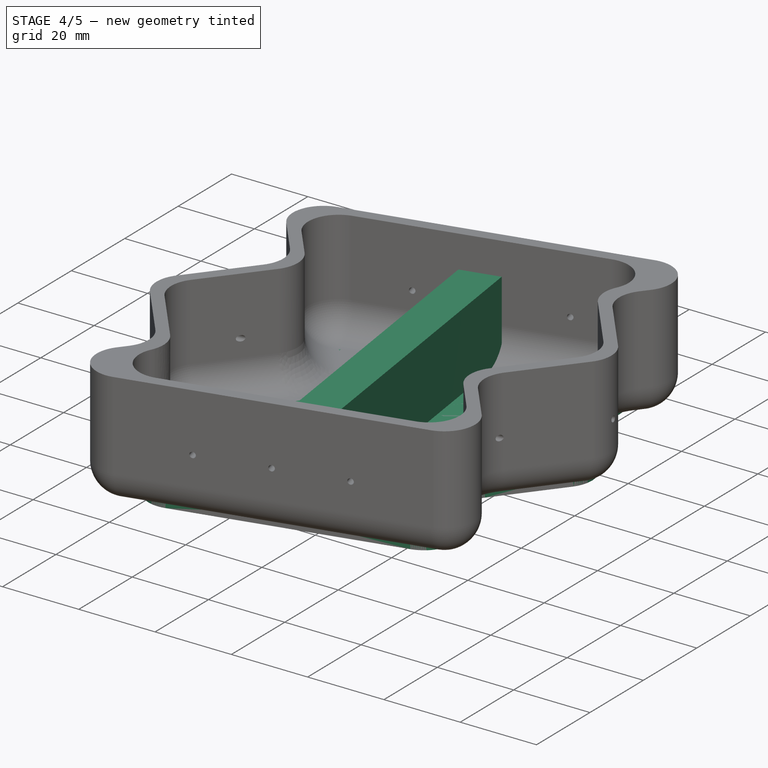
[diagram: stage 4 of 5 — iso view after this stage's code; geometry added in this stage tinted green]
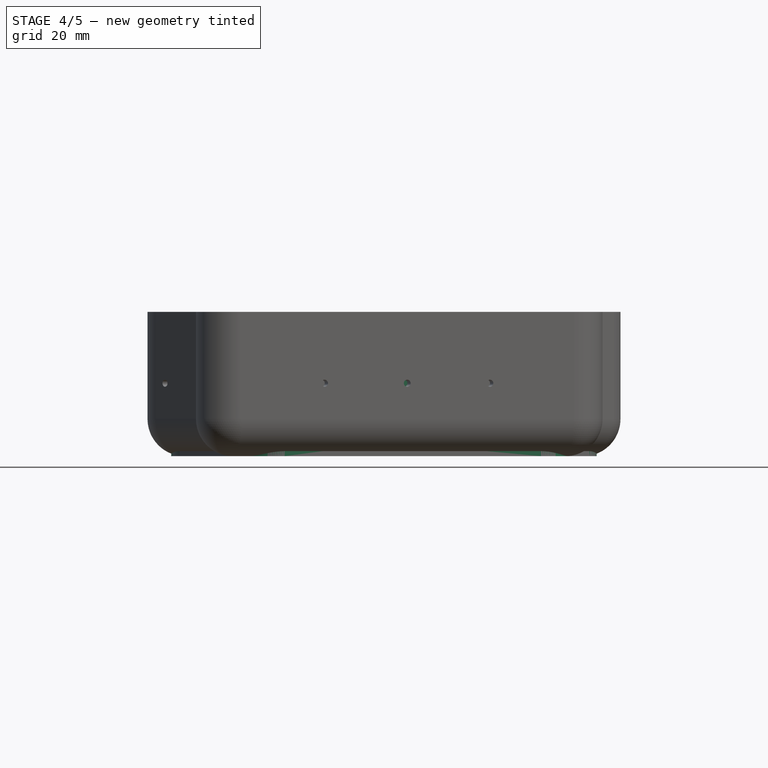
[diagram: stage 4 of 5 — front view after this stage's code; geometry added in this stage tinted green]
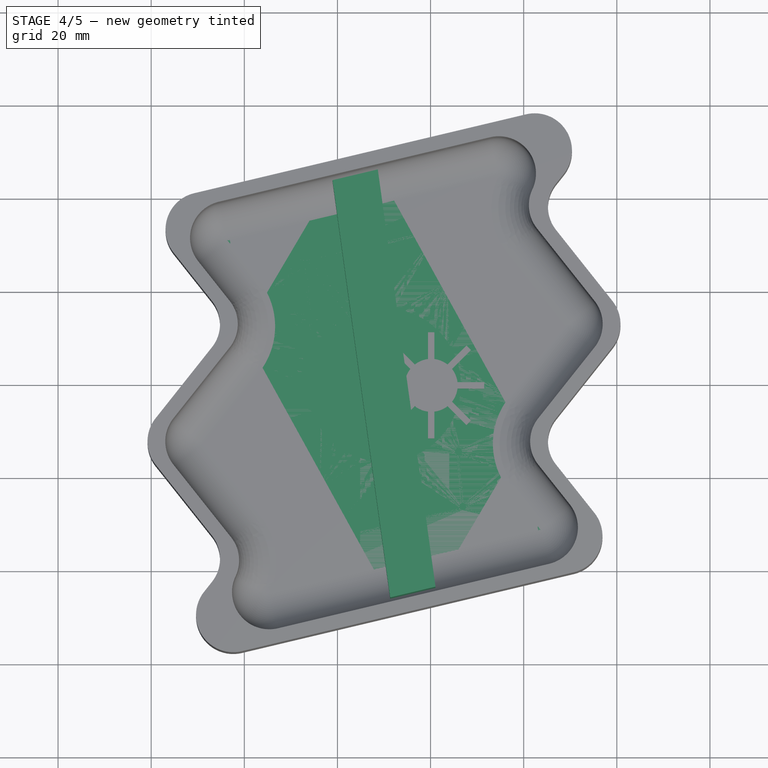
[diagram: stage 4 of 5 — top view after this stage's code; geometry added in this stage tinted green]
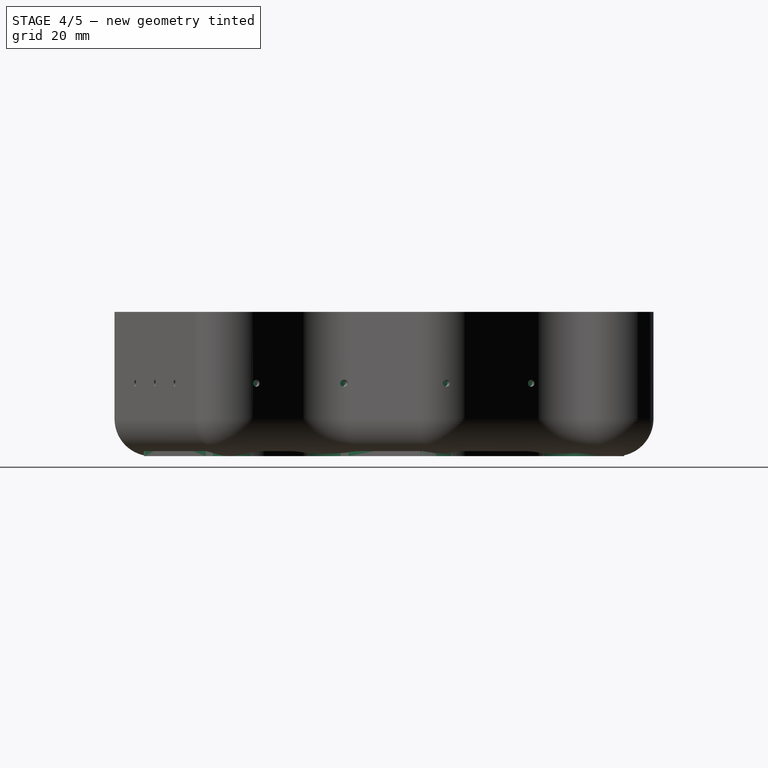
[diagram: stage 4 of 5 — right view after this stage's code; geometry added in this stage tinted green]
FEATURE [Sketcher::SketchObject] Sketch002
  FullyConstrained = true
  MapMode = 5
  Support = -> [XY_Plane001]
  expr: Constraints[47] = <<d>>.outerlength / 5
  expr: Constraints[46] = <<d>>.outerlength / 5
  expr: Constraints[45] = <<d>>.outerlength / 5
  expr: Constraints[81] = <<d>>.thickness + <<d>>.inner_margin / 2
  expr: Constraints[28] = <<d>>.zigzag_spacing
  expr: Constraints[9] = <<d>>.outerlength
  expr: Constraints[48] = <<d>>.outerlength / 5
  expr: Constraints[8] = <<d>>.outerwidth
  sketch-geometry (69):
    g0: LineSegment StartX=-43 StartY=63 StartZ=0 EndX=43 EndY=63 EndZ=0
    g1: LineSegment StartX=43 StartY=63 StartZ=0 EndX=43 EndY=-63 EndZ=0
    g2: LineSegment StartX=43 StartY=-63 StartZ=0 EndX=-43 EndY=-63 EndZ=0
    g3: LineSegment StartX=-43 StartY=-63 StartZ=0 EndX=-43 EndY=63 EndZ=0
    g4: LineSegment StartX=-43 StartY=63 StartZ=0 EndX=-63 EndY=63 EndZ=0
    g5: LineSegment StartX=-63 StartY=63 StartZ=0 EndX=-63 EndY=-63 EndZ=0
    g6: LineSegment StartX=-63 StartY=-63 StartZ=0 EndX=-43 EndY=-63 EndZ=0
    g7: LineSegment StartX=-43 StartY=-63 StartZ=0 EndX=-43 EndY=63 EndZ=0
    g8: LineSegment StartX=43 StartY=63 StartZ=0 EndX=23 EndY=63 EndZ=0
    g9: LineSegment StartX=23 StartY=63 StartZ=0 EndX=23 EndY=-63 EndZ=0
    g10: LineSegment StartX=23 StartY=-63 StartZ=0 EndX=43 EndY=-63 EndZ=0
    g11: LineSegment StartX=43 StartY=-63 StartZ=0 EndX=43 EndY=63 EndZ=0
    g12: LineSegment StartX=-63 StartY=37.8 StartZ=0 EndX=43 EndY=37.8 EndZ=0
    g13: LineSegment StartX=-63 StartY=12.6 StartZ=0 EndX=43 EndY=12.6 EndZ=0
    g14: LineSegment StartX=-63 StartY=-12.6 StartZ=0 EndX=43 EndY=-12.6 EndZ=0
    g15: LineSegment StartX=-63 StartY=-37.8 StartZ=0 EndX=43 EndY=-37.8 EndZ=0
    g16: LineSegment StartX=-63 StartY=37.8 StartZ=0 EndX=-63 EndY=63 EndZ=0
    g17: LineSegment StartX=43 StartY=63 StartZ=0 EndX=-63 EndY=37.8 EndZ=0
    g18: GeomPoint X=-43 Y=12.6 Z=0
    g19: GeomPoint X=-43 Y=-37.8 Z=0
    g20: GeomPoint X=23 Y=37.8 Z=0
    g21: GeomPoint X=23 Y=-12.6 Z=0
    g22: LineSegment StartX=-63 StartY=37.8 StartZ=0 EndX=-43 EndY=12.6 EndZ=0
    g23: LineSegment StartX=-43 StartY=12.6 StartZ=0 EndX=-63 EndY=-12.6 EndZ=0
    g24: LineSegment StartX=-63 StartY=-12.6 StartZ=0 EndX=-43 EndY=-37.8 EndZ=0
    g25: LineSegment StartX=-43 StartY=-37.8 StartZ=0 EndX=-63 EndY=-63 EndZ=0
    g26: LineSegment StartX=-63 StartY=-63 StartZ=0 EndX=43 EndY=-37.8 EndZ=0
    g27: LineSegment StartX=43 StartY=-37.8 StartZ=0 EndX=23 EndY=-12.6 EndZ=0
    g28: LineSegment StartX=23 StartY=-12.6 StartZ=0 EndX=43 EndY=12.6 EndZ=0
    g29: LineSegment StartX=43 StartY=12.6 StartZ=0 EndX=23 EndY=37.8 EndZ=0
    g30: LineSegment StartX=23 StartY=37.8 StartZ=0 EndX=43 EndY=63 EndZ=0
    g31: LineSegment StartX=-56.8839 StartY=39.254 StartZ=0 EndX=-55.9588 EndY=35.3625 EndZ=0
    g32: LineSegment StartX=-55.9588 StartY=35.3625 StartZ=0 EndX=-59.0919 EndY=32.8758 EndZ=0
    g33: LineSegment StartX=35.8169 StartY=53.9494 StartZ=0 EndX=32.6838 EndY=56.436 EndZ=0
    g34: LineSegment StartX=32.6838 StartY=56.436 StartZ=0 EndX=31.7586 EndY=60.3275 EndZ=0
    g35: LineSegment StartX=23.5131 StartY=38.4465 StartZ=0 EndX=20.38 EndY=40.9332 EndZ=0
    g36: LineSegment StartX=20.38 StartY=40.9332 StartZ=0 EndX=17.8933 EndY=37.8 EndZ=0
    g37: LineSegment StartX=17.8933 StartY=37.8 StartZ=0 EndX=20.38 EndY=34.6668 EndZ=0
    g38: LineSegment StartX=20.38 StartY=34.6668 StartZ=0 EndX=23.5131 EndY=37.1535 EndZ=0
    g39: LineSegment StartX=-43.5131 StartY=13.2465 StartZ=0 EndX=-40.38 EndY=15.7332 EndZ=0
    g40: LineSegment StartX=-40.38 StartY=15.7332 StartZ=0 EndX=-37.8933 EndY=12.6 EndZ=0
    g41: LineSegment StartX=-37.8933 StartY=12.6 StartZ=0 EndX=-40.38 EndY=9.46684 EndZ=0
    g42: LineSegment StartX=-40.38 StartY=9.46684 StartZ=0 EndX=-43.5131 EndY=11.9535 EndZ=0
    g43: LineSegment StartX=41.0265 StartY=15.0866 StartZ=0 EndX=37.8933 EndY=12.6 EndZ=0
    g44: LineSegment StartX=37.8933 StartY=12.6 StartZ=0 EndX=41.0265 EndY=10.1134 EndZ=0
    g45: LineSegment StartX=-61.0265 StartY=-10.1134 StartZ=0 EndX=-57.8933 EndY=-12.6 EndZ=0
    g46: LineSegment StartX=-57.8933 StartY=-12.6 StartZ=0 EndX=-61.0265 EndY=-15.0866 EndZ=0
    g47: LineSegment StartX=23.5131 StartY=-11.9535 StartZ=0 EndX=20.38 EndY=-9.46684 EndZ=0
    g48: LineSegment StartX=20.38 StartY=-9.46684 StartZ=0 EndX=17.8933 EndY=-12.6 EndZ=0
    g49: LineSegment StartX=17.8933 StartY=-12.6 StartZ=0 EndX=20.38 EndY=-15.7332 EndZ=0
    g50: LineSegment StartX=20.38 StartY=-15.7332 StartZ=0 EndX=23.5131 EndY=-13.2465 EndZ=0
    g51: LineSegment StartX=-43.5131 StartY=-37.1535 StartZ=0 EndX=-40.38 EndY=-34.6668 EndZ=0
    g52: LineSegment StartX=-40.38 StartY=-34.6668 StartZ=0 EndX=-37.8933 EndY=-37.8 EndZ=0
    g53: LineSegment StartX=-37.8933 StartY=-37.8 StartZ=0 EndX=-40.38 EndY=-40.9332 EndZ=0
    g54: LineSegment StartX=-40.38 StartY=-40.9332 StartZ=0 EndX=-43.5131 EndY=-38.4465 EndZ=0
    g55: LineSegment StartX=-55.8169 StartY=-53.9494 StartZ=0 EndX=-52.6838 EndY=-56.436 EndZ=0
    g56: LineSegment StartX=-52.6838 StartY=-56.436 StartZ=0 EndX=-51.7586 EndY=-60.3275 EndZ=0
    g57: LineSegment StartX=39.0919 StartY=-32.8758 StartZ=0 EndX=35.9588 EndY=-35.3625 EndZ=0
    g58: LineSegment StartX=35.9588 StartY=-35.3625 StartZ=0 EndX=36.8839 EndY=-39.254 EndZ=0
    g59: LineSegment StartX=32.6838 StartY=56.436 StartZ=0 EndX=17.8933 EndY=37.8 EndZ=0
    g60: LineSegment StartX=17.8933 StartY=37.8 StartZ=0 EndX=37.8933 EndY=12.6 EndZ=0
    g61: LineSegment StartX=37.8933 StartY=12.6 StartZ=0 EndX=17.8933 EndY=-12.6 EndZ=0
    g62: LineSegment StartX=17.8933 StartY=-12.6 StartZ=0 EndX=35.9588 EndY=-35.3625 EndZ=0
    g63: LineSegment StartX=35.9588 StartY=-35.3625 StartZ=0 EndX=-52.6838 EndY=-56.436 EndZ=0
    g64: LineSegment StartX=-52.6838 StartY=-56.436 StartZ=0 EndX=-37.8933 EndY=-37.8 EndZ=0
    g65: LineSegment StartX=-37.8933 StartY=-37.8 StartZ=0 EndX=-57.8933 EndY=-12.6 EndZ=0
    g66: LineSegment StartX=-57.8933 StartY=-12.6 StartZ=0 EndX=-37.8933 EndY=12.6 EndZ=0
    g67: LineSegment StartX=-37.8933 StartY=12.6 StartZ=0 EndX=-55.9588 EndY=35.3625 EndZ=0
    g68: LineSegment StartX=-55.9588 StartY=35.3625 StartZ=0 EndX=32.6838 EndY=56.436 EndZ=0
  constraints (191):
    c: Coincident(g0,g1)
    c: Coincident(g1,g2)
    c: Coincident(g2,g3)
    c: Coincident(g3,g0)
    c: Horizontal(g2)
    c: Vertical(g1)
    c: Symmetric(g0,g0,g-2)
    c: Symmetric(g0,g2,g-1)
    c: DistanceX(g0,g0) = 86
    c: DistanceY(g3,g3) = 126
    c: Coincident(g4,g5)
    c: Coincident(g5,g6)
    c: Coincident(g6,g7)
    c: Coincident(g7,g4)
    c: Horizontal(g4)
    c: Horizontal(g6)
    c: Vertical(g5)
    c: Coincident(g4,g0)
    c: Coincident(g2,g6)
    c: Coincident(g8,g9)
    c: Coincident(g9,g10)
    c: Coincident(g10,g11)
    c: Coincident(g11,g8)
    c: Horizontal(g8)
    c: Horizontal(g10)
    c: Vertical(g9)
    c: Vertical(g11)
    c: Coincident(g8,g0)
    c: DistanceX(g6,g6) = 20
    c: Equal(g10,g6)
    c: PointOnObject(g9,g2)
    c: PointOnObject(g12,g5)
    c: PointOnObject(g12,g1)
    c: Horizontal(g12)
    c: PointOnObject(g13,g5)
    c: PointOnObject(g13,g1)
    c: Horizontal(g13)
    c: PointOnObject(g14,g5)
    c: PointOnObject(g14,g1)
    c: Horizontal(g14)
    c: PointOnObject(g15,g5)
    c: PointOnObject(g15,g1)
    c: Horizontal(g15)
    c: Coincident(g16,g12)
    c: Coincident(g16,g4)
    c: DistanceY(g12,g4) = 25.2
    c: DistanceY(g13,g12) = 25.2
    c: DistanceY(g14,g13) = 25.2
    c: DistanceY(g15,g14) = 25.2
    c: Coincident(g17,g12)
    c: PointOnObject(g18,g3)
    c: PointOnObject(g19,g3)
    c: PointOnObject(g20,g9)
    c: PointOnObject(g21,g9)
    c: PointOnObject(g20,g12)
    c: PointOnObject(g21,g14)
    c: PointOnObject(g18,g13)
    c: PointOnObject(g19,g15)
    c: Coincident(g17,g22)
    c: Coincident(g22,g18)
    c: Coincident(g22,g23)
    c: Coincident(g23,g14)
    c: Coincident(g23,g24)
    c: Coincident(g24,g19)
    c: Coincident(g24,g25)
    c: Coincident(g25,g5)
    c: Coincident(g26,g15)
    c: Coincident(g26,g27)
    c: Coincident(g27,g21)
    c: Coincident(g27,g28)
    c: Coincident(g28,g13)
    c: Coincident(g28,g29)
    c: Coincident(g29,g20)
    c: Coincident(g29,g30)
    c: Coincident(g30,g0)
    c: Coincident(g17,g30)
    c: Coincident(g26,g25)
    c: PointOnObject(g31,g17)
    c: Coincident(g31,g32)
    c: PointOnObject(g32,g22)
    c: Perpendicular(g22,g32)
    c: Distance(g31) = 4
    c: Equal(g32,g31)
    c: Perpendicular(g17,g31)
    c: PointOnObject(g33,g30)
    c: Coincident(g33,g34)
    c: PointOnObject(g34,g17)
    c: Equal(g34,g33)
    c: Equal(g33,g31)
    c: Perpendicular(g30,g33)
    c: Perpendicular(g34,g17)
    c: PointOnObject(g35,g30)
    c: Coincident(g35,g36)
    c: PointOnObject(g36,g12)
    c: Coincident(g36,g37)
    c: Coincident(g37,g38)
    c: PointOnObject(g38,g29)
    c: Perpendicular(g30,g35)
    c: Perpendicular(g29,g38)
    c: Equal(g38,g35)
    c: Equal(g35,g33)
    c: Perpendicular(g35,g36)
    c: PointOnObject(g39,g22)
    c: Coincident(g39,g40)
    c: PointOnObject(g40,g13)
    c: Coincident(g40,g41)
    c: Coincident(g41,g42)
    c: PointOnObject(g42,g23)
    c: Equal(g42,g39)
    c: Equal(g39,g31)
    c: Perpendicular(g22,g39)
    c: Perpendicular(g23,g42)
    c: Perpendicular(g39,g40)
    c: PointOnObject(g43,g29)
    c: PointOnObject(g43,g13)
    c: Coincident(g43,g44)
    c: PointOnObject(g44,g28)
    c: Equal(g43,g44)
    c: Equal(g44,g35)
    c: Perpendicular(g29,g43)
    c: Equal(g40,g41)
    c: Equal(g41,g39)
    c: Equal(g36,g37)
    c: Equal(g37,g35)
    c: PointOnObject(g45,g23)
    c: PointOnObject(g45,g14)
    c: Coincident(g45,g46)
    c: PointOnObject(g46,g24)
    c: Perpendicular(g23,g45)
    c: Perpendicular(g24,g46)
    c: Equal(g45,g39)
    c: PointOnObject(g47,g28)
    c: Coincident(g47,g48)
    c: PointOnObject(g48,g14)
    c: Coincident(g48,g49)
    c: Coincident(g49,g50)
    c: PointOnObject(g50,g27)
    c: Perpendicular(g28,g47)
    c: Perpendicular(g27,g50)
    c: Equal(g47,g48)
    c: Equal(g48,g43)
    c: Equal(g50,g47)
    c: Equal(g49,g48)
    c: Perpendicular(g47,g48)
    c: PointOnObject(g51,g24)
    c: Coincident(g51,g52)
    c: PointOnObject(g52,g15)
    c: Coincident(g52,g53)
    c: Coincident(g53,g54)
    c: PointOnObject(g54,g25)
    c: Perpendicular(g24,g51)
    c: Perpendicular(g25,g54)
    c: Perpendicular(g51,g52)
    c: Equal(g52,g51)
    c: Equal(g51,g54)
    c: Equal(g54,g45)
    c: Equal(g53,g54)
    c: PointOnObject(g55,g25)
    c: Coincident(g55,g56)
    c: PointOnObject(g56,g26)
    c: Perpendicular(g25,g55)
    c: Perpendicular(g26,g56)
    c: Equal(g56,g55)
    c: Equal(g55,g51)
    c: PointOnObject(g57,g27)
    c: Coincident(g57,g58)
    c: PointOnObject(g58,g26)
    c: Perpendicular(g27,g57)
    c: Perpendicular(g26,g58)
    c: Equal(g58,g57)
    c: Equal(g57,g47)
    c: Coincident(g33,g59)
    c: Coincident(g59,g36)
    c: Coincident(g59,g60)
    c: Coincident(g60,g61)
    c: Coincident(g61,g48)
    c: Coincident(g60,g43)
    c: Coincident(g61,g62)
    c: Coincident(g62,g57)
    c: Coincident(g62,g63)
    c: Coincident(g63,g55)
    c: Coincident(g63,g64)
    c: Coincident(g64,g52)
    c: Coincident(g64,g65)
    c: Coincident(g65,g45)
    c: Coincident(g65,g66)
    c: Coincident(g66,g40)
    c: Coincident(g66,g67)
    c: Coincident(g67,g31)
    c: Coincident(g67,g68)
    c: Coincident(g68,g59)
FEATURE [PartDesign::Pad] Pad001
  Direction = (1,1,1)
  Length = 3
  Length2 = 100
  Profile = -> Sketch002
  Type = 0
  expr: Length = <<d>>.thickness
FEATURE [PartDesign::Fillet] Fillet004
  Base = -> Pad001 [Edge11,Edge8,Edge5,Edge2,Edge26,Edge23,Edge20,Edge17]
  BaseFeature = -> Pad001
  Radius = 8
  SupportTransform = false
  expr: Radius = <<d>>.zigzag_curve
FEATURE [PartDesign::Fillet] Fillet005
  Base = -> Fillet004 [Edge53,Edge3]
  BaseFeature = -> Fillet004
  Radius = 8
  SupportTransform = false
  expr: Radius = <<d>>.zigzag_curve
FEATURE [Sketcher::SketchObject] Sketch003
  ExternalGeometry = -> [Fillet005]
  FullyConstrained = true
  MapMode = 5
  Placement = pos=(0,0,3) rot=(0,0,1;0rad)
  Support = -> [Fillet005]
  expr: Constraints[12] = <<d>>.handle_width
  expr: Constraints[14] = <<d>>.handle_width / 2
  expr: Constraints[15] = <<d>>.handle_width / 2
  sketch-geometry (7):
    g0: GeomPoint X=-16.1953 Y=44.8157 Z=0
    g1: GeomPoint X=-3.80467 Y=-44.8157 Z=0
    g2: LineSegment StartX=-16.1953 StartY=44.8157 StartZ=0 EndX=-3.80467 EndY=-44.8157 EndZ=0
    g3: LineSegment StartX=-21.0598 StartY=43.6592 StartZ=0 EndX=-11.3309 EndY=45.9721 EndZ=0
    g4: LineSegment StartX=-11.3309 StartY=45.9721 StartZ=0 EndX=1.05976 EndY=-43.6592 EndZ=0
    g5: LineSegment StartX=1.05976 StartY=-43.6592 StartZ=0 EndX=-8.66909 EndY=-45.9721 EndZ=0
    g6: LineSegment StartX=-8.66909 StartY=-45.9721 StartZ=0 EndX=-21.0598 EndY=43.6592 EndZ=0
  constraints (16):
    c: Symmetric(g-3,g-3,g0)
    c: Symmetric(g-4,g-4,g1)
    c: Coincident(g2,g0)
    c: Coincident(g2,g1)
    c: PointOnObject(g3,g-3)
    c: PointOnObject(g3,g-3)
    c: Coincident(g3,g4)
    c: PointOnObject(g4,g-4)
    c: Coincident(g4,g5)
    c: PointOnObject(g5,g-4)
    c: Coincident(g5,g6)
    c: Coincident(g6,g3)
    c: Distance(g3) = 10
    c: Equal(g3,g5)
    c: Distance(g0,g3) = 5
    c: Distance(g1,g4) = 5
FEATURE [PartDesign::Pad] Pad002
  BaseFeature = -> Fillet005
  Direction = (1,1,1)
  Length = 20
  Length2 = 100
  Profile = -> Sketch003
  Type = 0
  expr: Length = <<d>>.handle_height
FEATURE [PartDesign::Body] Body002  label="coin"
  BaseFeature = -> rect207_3_6_7
  Group = -> [BaseFeature,Sketch013,Pad003,Pad004]
  Origin = -> Origin002
  Placement = pos=(-9.79328,0.137812,1) rot=(0,0,1;0rad)
  Tip = -> BaseFeature
FEATURE [PartDesign::Fillet] Fillet008
  Base = -> Pocket008 [Edge206,Edge265]
  BaseFeature = -> Pocket008
  Radius = 0.5
  SupportTransform = false
  expr: Radius = <<d>>.filet_sm
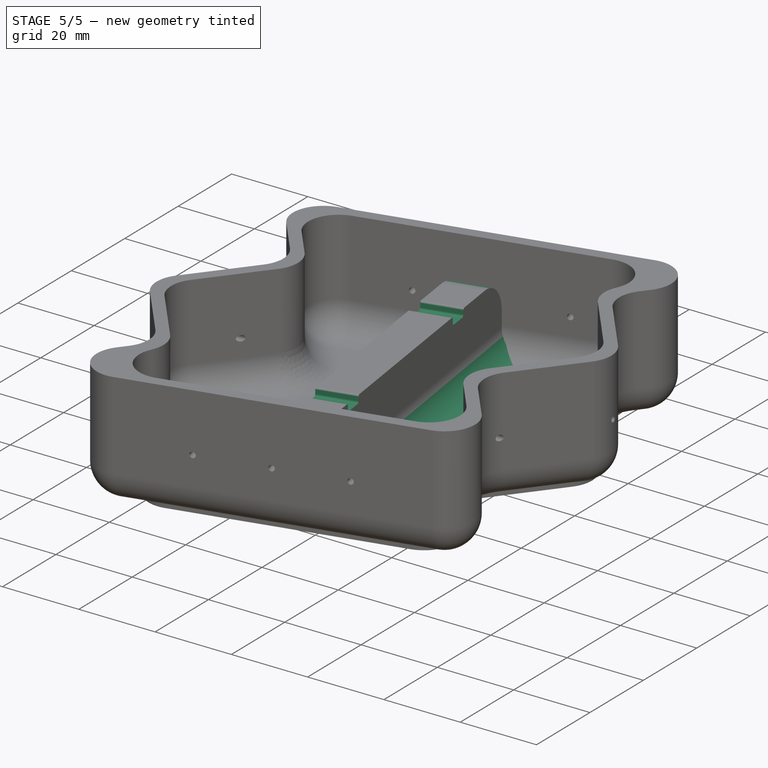
[diagram: stage 5 of 5 — iso view after this stage's code; geometry added in this stage tinted green]
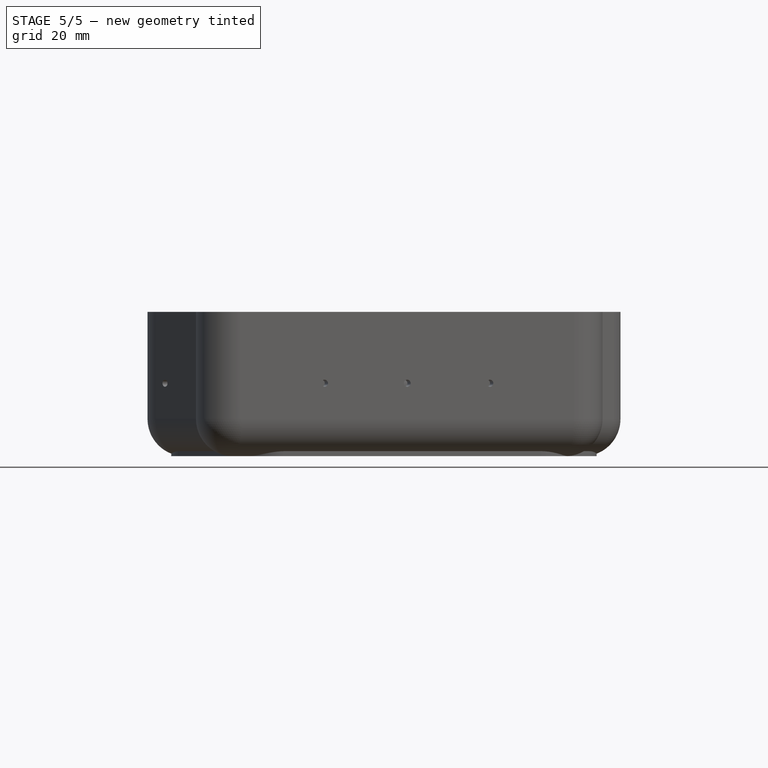
[diagram: stage 5 of 5 — front view after this stage's code; geometry added in this stage tinted green]
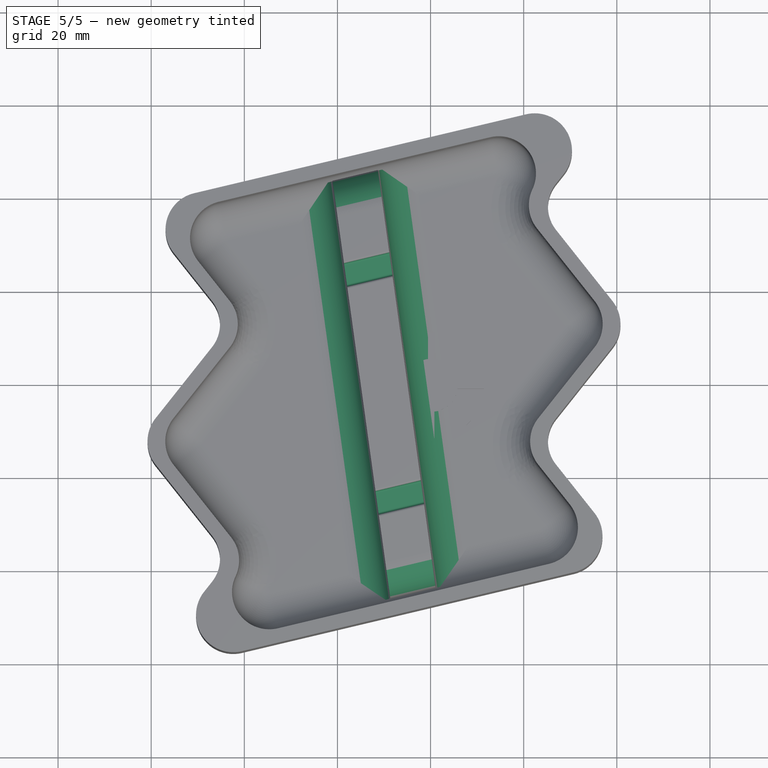
[diagram: stage 5 of 5 — top view after this stage's code; geometry added in this stage tinted green]
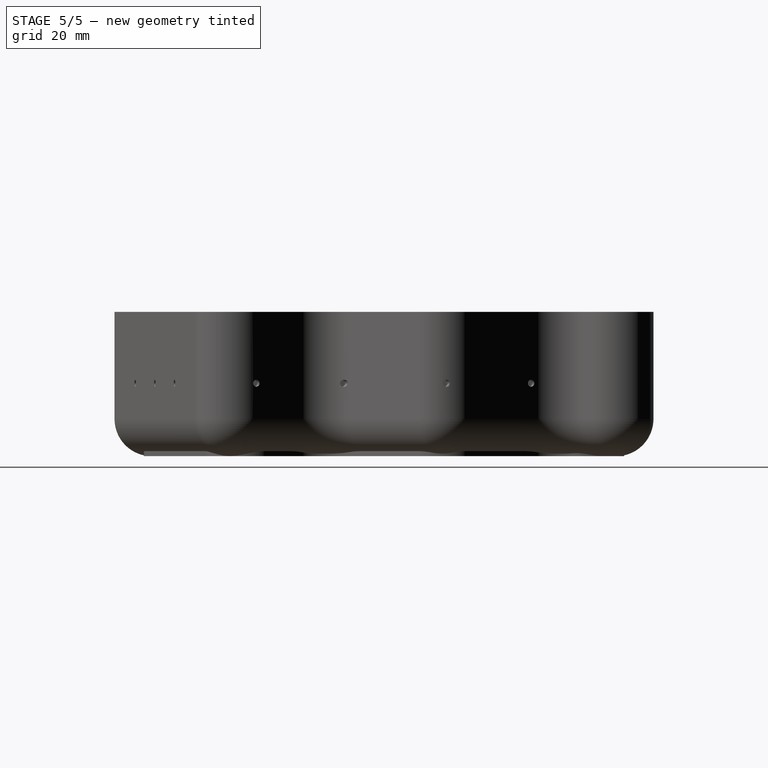
[diagram: stage 5 of 5 — right view after this stage's code; geometry added in this stage tinted green]
FEATURE [PartDesign::Fillet] Fillet006
  Base = -> Pad002 [Edge60,Edge59,Edge66,Edge63]
  BaseFeature = -> Pad002
  Radius = 8
  SupportTransform = false
  expr: Radius = <<d>>.filet
FEATURE [Sketcher::SketchObject] Sketch004
  FullyConstrained = true
  MapMode = 5
  Placement = pos=(0,0,23) rot=(0,0,1;0rad)
  Support = -> [Fillet006]
FEATURE [Sketcher::SketchObject] Sketch005
  ExternalGeometry = -> [Fillet006]
  FullyConstrained = true
  MapMode = 5
  Placement = pos=(0,0,23) rot=(0,0,1;0rad)
  Support = -> [Fillet006]
  expr: Constraints[10] = <<d>>.slot_width
  expr: Constraints[30] = <<d>>.slot_width * 2
  sketch-geometry (11):
    g0: LineSegment StartX=-18.5898 StartY=25.7921 StartZ=0 EndX=-8.86095 EndY=28.105 EndZ=0
    g1: LineSegment StartX=-8.86095 StartY=28.105 StartZ=0 EndX=-8.17626 EndY=23.1521 EndZ=0
    g2: LineSegment StartX=-8.17626 StartY=23.1521 StartZ=0 EndX=-17.9051 EndY=20.8392 EndZ=0
    g3: LineSegment StartX=-17.9051 StartY=20.8392 StartZ=0 EndX=-18.5898 EndY=25.7921 EndZ=0
    g4: LineSegment StartX=-11.8237 StartY=-23.1521 StartZ=0 EndX=-2.09489 EndY=-20.8392 EndZ=0
    g5: LineSegment StartX=-2.09489 StartY=-20.8392 StartZ=0 EndX=-1.4102 EndY=-25.7921 EndZ=0
    g6: LineSegment StartX=-1.4102 StartY=-25.7921 StartZ=0 EndX=-11.139 EndY=-28.105 EndZ=0
    g7: LineSegment StartX=-11.139 StartY=-28.105 StartZ=0 EndX=-11.8237 EndY=-23.1521 EndZ=0
    g8: LineSegment StartX=-18.5898 StartY=25.7921 StartZ=0 EndX=-19.9592 EndY=35.6979 EndZ=0
    g9: LineSegment StartX=-17.9051 StartY=20.8392 StartZ=0 EndX=-11.8237 EndY=-23.1521 EndZ=0
    g10: LineSegment StartX=-11.139 StartY=-28.105 StartZ=0 EndX=-9.76967 EndY=-38.0108 EndZ=0
  constraints (31):
    c: Distance(g-3) = 74.4097  'lid_length'
    c: PointOnObject(g0,g-4)
    c: PointOnObject(g0,g-3)
    c: Coincident(g0,g1)
    c: PointOnObject(g1,g-3)
    c: Coincident(g1,g2)
    c: PointOnObject(g2,g-4)
    c: Coincident(g2,g3)
    c: Coincident(g3,g0)
    c: Parallel(g2,g0)
    c: Distance(g1) = 5
    c: PointOnObject(g4,g-4)
    c: PointOnObject(g4,g-3)
    c: Coincident(g4,g5)
    c: PointOnObject(g5,g-3)
    c: Coincident(g5,g6)
    c: PointOnObject(g6,g-4)
    c: Coincident(g6,g7)
    c: Coincident(g7,g4)
    c: Parallel(g4,g6)
    c: Equal(g5,g1)
    c: Parallel(g0,g-5)
    c: Parallel(g4,g-5)
    c: Coincident(g8,g0)
    c: Coincident(g8,g-5)
    c: Coincident(g9,g2)
    c: Coincident(g9,g4)
    c: Coincident(g10,g6)
    c: Coincident(g10,g-4)
    c: Equal(g10,g8)
    c: Distance(g8) = 10
FEATURE [PartDesign::Pocket] Pocket001
  BaseFeature = -> Fillet006
  Length = 2
  Length2 = 100
  Profile = -> Sketch005
  Type = 0
  expr: Length = <<d>>.slot_height
FEATURE [PartDesign::Fillet] Fillet007
  Base = -> Pocket001 [Edge107,Edge106,Edge105,Edge104,Edge100,Edge101,Edge103,Edge102]
  BaseFeature = -> Pocket001
  Radius = 0.5
  SupportTransform = false
  expr: Radius = <<d>>.filet_sm
FEATURE [Sketcher::SketchObject] Sketch006
  ExternalGeometry = -> [Fillet007]
  FullyConstrained = true
  MapMode = 5
  Placement = pos=(0,0,3) rot=(0,0,1;0rad)
  Support = -> [Fillet007]
  expr: Constraints[0] = <<d>>.holes_dia
  expr: Constraints[4] = <<d>>.handle_width / 2
  expr: Constraints[12] = 90 / (<<d>>.lid_holes_number + 1)
  expr: Constraints[13] = 90 / (<<d>>.lid_holes_number + 1)
  expr: Constraints[14] = 90 / (<<d>>.lid_holes_number + 1)
  expr: Constraints[15] = 90 / (<<d>>.lid_holes_number + 1)
  sketch-geometry (5):
    g0: Circle CenterX=-31.2784 CenterY=22.8135 CenterZ=0 NormalX=0 NormalY=0 NormalZ=1 AngleXU=0 Radius=0.75
    g1: LineSegment StartX=-33.7433 StartY=40.6439 StartZ=0 EndX=-21.3526 EndY=-48.9874 EndZ=0
    g2: Circle CenterX=-28.8135 CenterY=4.98302 CenterZ=0 NormalX=0 NormalY=0 NormalZ=1 AngleXU=0 Radius=0.75
    g3: Circle CenterX=-26.3486 CenterY=-12.8474 CenterZ=0 NormalX=0 NormalY=0 NormalZ=1 AngleXU=0 Radius=0.75
    g4: Circle CenterX=-23.8837 CenterY=-30.6778 CenterZ=0 NormalX=0 NormalY=0 NormalZ=1 AngleXU=0 Radius=0.75
  constraints (16):
    c: Diameter(g0) = 1.5
    c: PointOnObject(g1,g-4)
    c: PointOnObject(g1,g-5)
    c: Parallel(g1,g-3)
    c: Distance(g1,g-4) = 5
    c: PointOnObject(g0,g1)
    c: PointOnObject(g2,g1)
    c: PointOnObject(g3,g1)
    c: PointOnObject(g4,g1)
    c: Equal(g4,g3)
    c: Equal(g3,g2)
    c: Equal(g2,g0)
    c: Distance(g0,g1) = 18
    c: Distance(g2,g0) = 18
    c: Distance(g3,g2) = 18
    c: Distance(g3,g4) = 18
FEATURE [PartDesign::Pocket] Pocket002
  BaseFeature = -> Fillet007
  Length = 5
  Length2 = 100
  Profile = -> Sketch006
  Type = 1
FEATURE [PartDesign::Line] DatumLine
  AttacherType = Attacher::AttachEngineLine
  AttachmentOffset = pos=(-5,0,0) rot=(0,0,1;0rad)
  Length = 20
  MapMode = 29
  Placement = pos=(-9.78966,-1.35333,23) rot=(-0.048587,0.706272,0.706272;3.23869rad)
  ResizeMode = 0
  Support = -> [Pocket002]
  expr: .AttachmentOffset.Base.x = -<<d>>.handle_width / 2
FEATURE [PartDesign::Plane] DatumPlane
  Length = 65.1448
  MapMode = 4
  Placement = pos=(-9.78966,-1.35333,23) rot=(0.06847,-0.995301,0.06847;1.57551rad)
  ResizeMode = 0
  Support = -> [DatumLine]
  Width = 129.827
FEATURE [PartDesign::Mirrored] Mirrored
  BaseFeature = -> Pocket002
  MirrorPlane = -> DatumPlane
  Originals = -> [Pocket002]
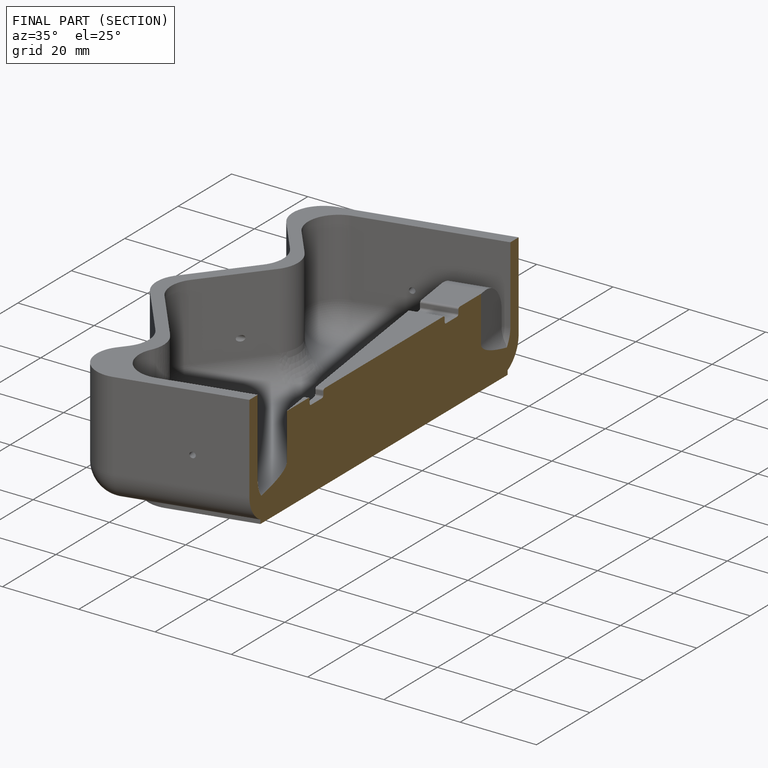
[diagram: finished part — half-section view (interior)]
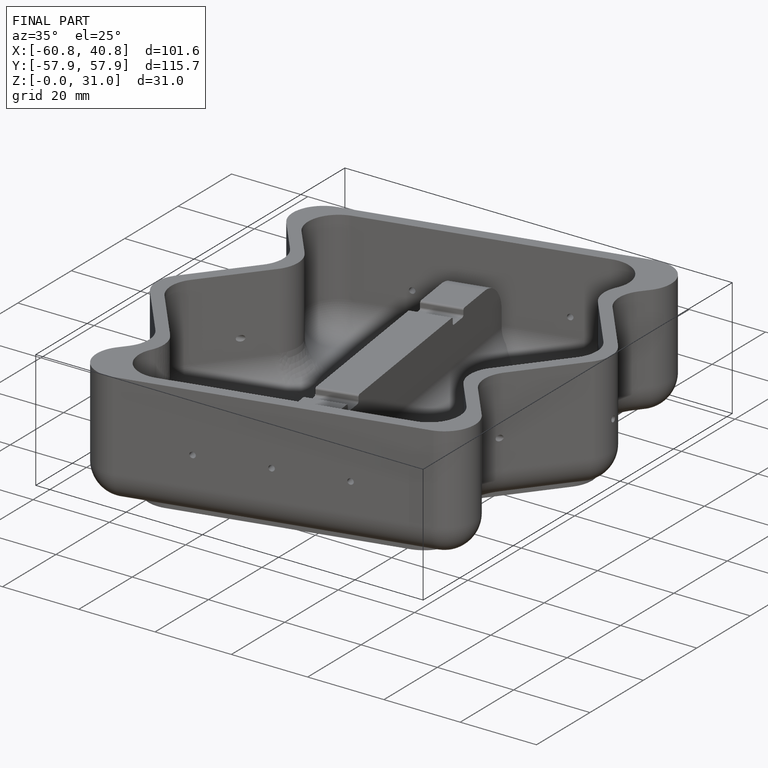
[diagram: finished part — iso view with bounding-box wireframe]
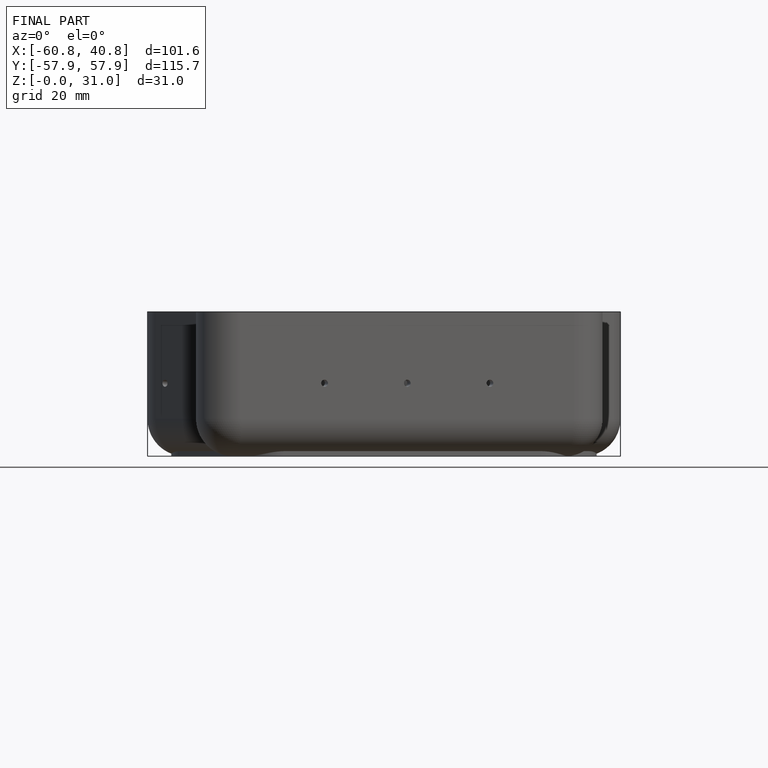
[diagram: finished part — front view with bounding-box wireframe]
